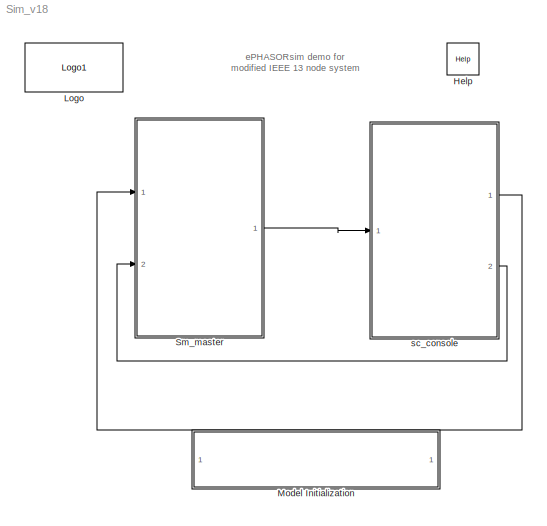
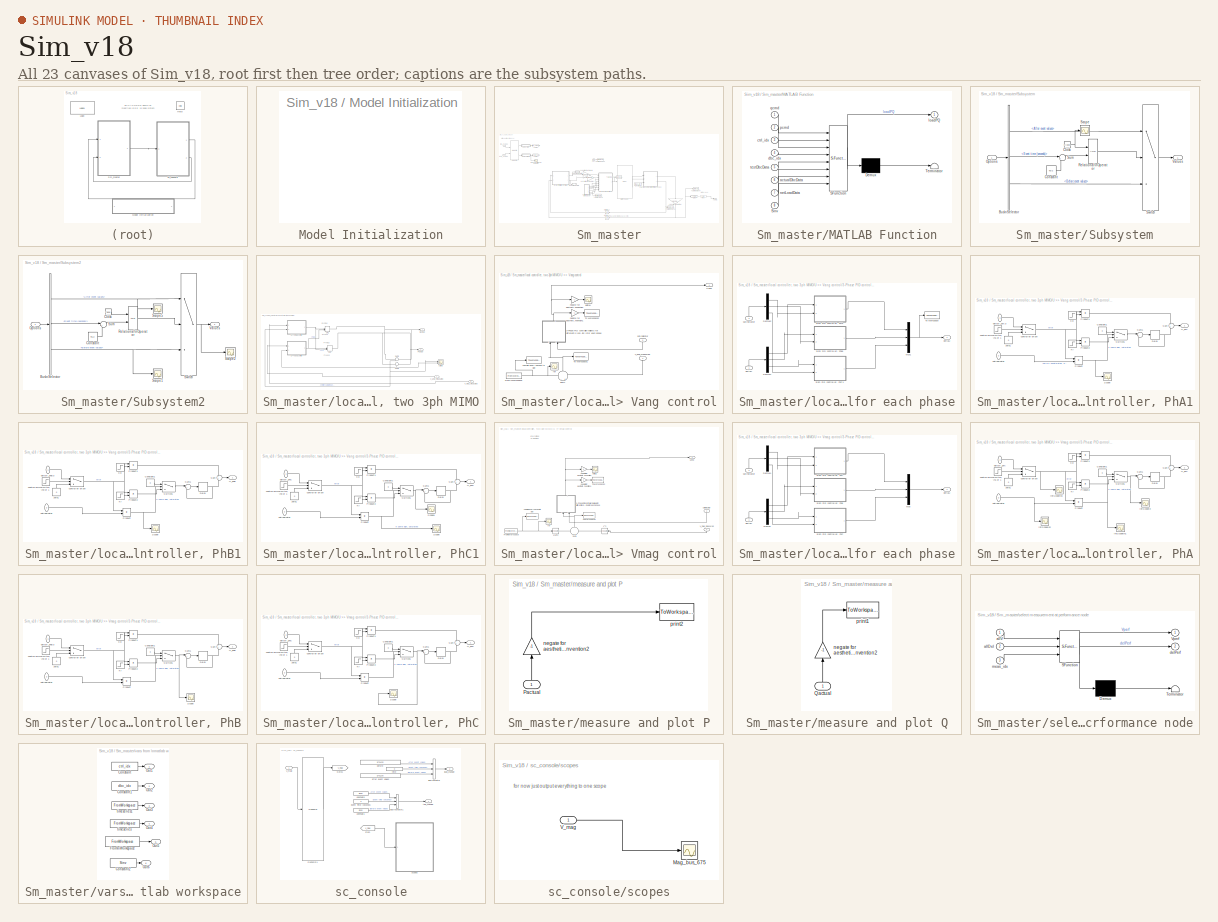
[diagram: thumbnail index - all 23 canvases of the model, root first then tree order]
MODEL Sim_v18
KIND model
CONFIG InitFcn = Ts=0.1;
CONFIG PostLoadFcn = Ts=0.1;
CONFIG PreLoadFcn = Ts=0.1;
CONFIG StartFcn = Ts=0.1;
BLOCK [Reference] Help  REF=opal_lib/Help
  Ports = []
  SID = 168
  SourceBlock = opal_lib/Help
  SourceType = OpDoc
  docfile = ../help/ePH_IEEE13.html
BLOCK [Reference] Logo  REF=opal_lib/Logo1
  Ports = []
  SID = 169
  SourceBlock = opal_lib/Logo1
  SourceType = Opal-RT logo
  vide = []
BLOCK [SubSystem] Model Initialization
  CopyFcn = set_param(gcb,'LinkStatus','none')
  Ports = []
  RequestExecContextInheritance = off
  SID = 107
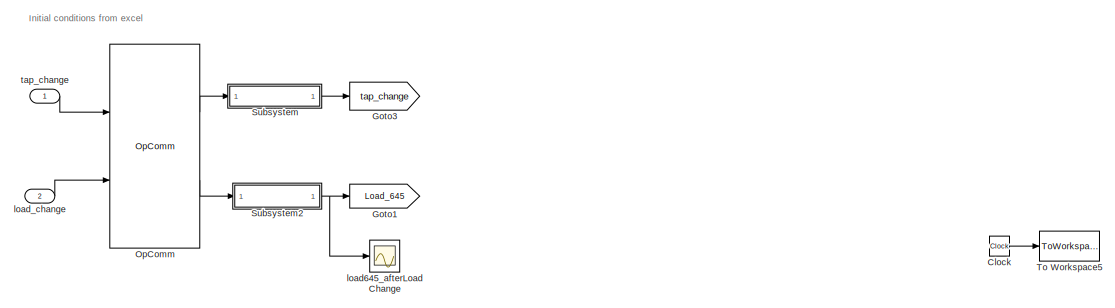
[diagram: Sm_master - part 1/3, top left region]
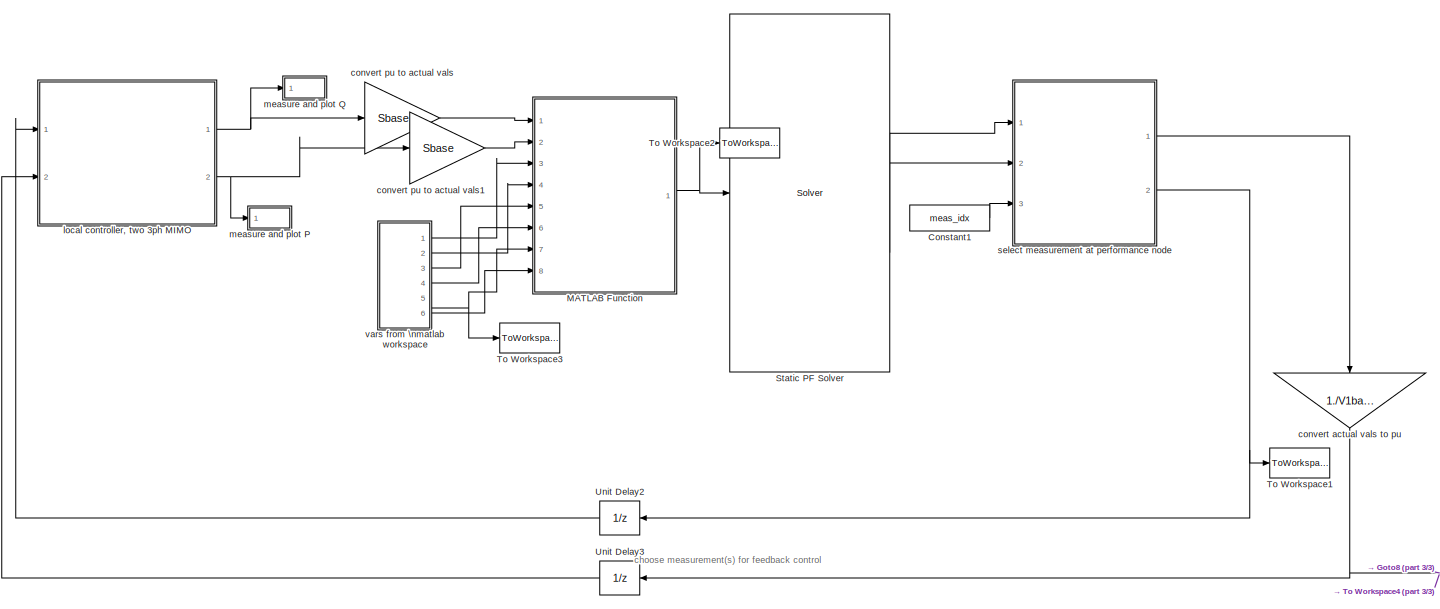
[diagram: Sm_master - part 2/3, central region]
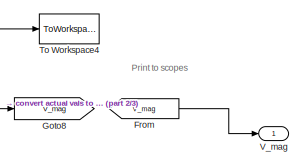
[diagram: Sm_master - part 3/3, bottom right region]
BLOCK [SubSystem] Sm_master
  Ports = [2, 1]
  RequestExecContextInheritance = off
  SID = 44
BLOCK [Clock] Sm_master/Clock
  SID = 2045
BLOCK [Constant] Sm_master/Constant1
  SID = 2028
  Value = meas_idx
BLOCK [From] Sm_master/From
  GotoTag = V_mag
  SID = 533
BLOCK [Goto] Sm_master/Goto1
  GotoTag = Load_645
  SID = 538
BLOCK [Goto] Sm_master/Goto3
  GotoTag = tap_change
  SID = 539
BLOCK [Goto] Sm_master/Goto8
  GotoTag = V_mag
  SID = 627
BLOCK [SubSystem] Sm_master/MATLAB Function
  ErrorFcn = Stateflow.Translate.translate
  PermitHierarchicalResolution = ExplicitOnly
  Ports = [8, 1]
  RequestExecContextInheritance = off
  SFBlockType = MATLAB Function
  SID = 1962
  TreatAsAtomicUnit = on
BLOCK [Demux] Sm_master/MATLAB Function/ Demux 
  Outputs = 1
  Ports = [1, 1]
  SID = 1962::17
BLOCK [S-Function] Sm_master/MATLAB Function/ SFunction 
  EnableBusSupport = on
  FunctionName = sf_sfun
  PortCounts = [8 2]
  Ports = [8, 2]
  SID = 1962::16
  Tag = Stateflow S-Function Sim_v18 2
BLOCK [Terminator] Sm_master/MATLAB Function/ Terminator 
  SID = 1962::18
BLOCK [Inport] Sm_master/MATLAB Function/Sinv
  IconDisplay = Port number
  Port = 8
  SID = 1962::33
BLOCK [Inport] Sm_master/MATLAB Function/actualDbcData
  IconDisplay = Port number
  Port = 6
  SID = 1962::32
BLOCK [Inport] Sm_master/MATLAB Function/ctrl_idx
  IconDisplay = Port number
  Port = 3
  SID = 1962::28
BLOCK [Inport] Sm_master/MATLAB Function/dbc_idx
  IconDisplay = Port number
  Port = 4
  SID = 1962::29
BLOCK [Outport] Sm_master/MATLAB Function/loadPQ
  IconDisplay = Port number
  SID = 1962::5
BLOCK [Inport] Sm_master/MATLAB Function/netLoadData
  IconDisplay = Port number
  Port = 7
  SID = 1962::31
BLOCK [Inport] Sm_master/MATLAB Function/pcmd
  IconDisplay = Port number
  Port = 2
  SID = 1962::1
BLOCK [Inport] Sm_master/MATLAB Function/qcmd
  IconDisplay = Port number
  SID = 1962::19
BLOCK [Inport] Sm_master/MATLAB Function/testDbcData
  IconDisplay = Port number
  Port = 5
  SID = 1962::30
BLOCK [Reference] Sm_master/OpComm  REF=rtlab/OpComm
  Interpolation = on
  Missed_Data = off
  Offset = off
  Ports = [2, 2]
  SID = 542
  Samples = off
  Sim_Time = off
  SourceBlock = rtlab/OpComm
  SourceType = RT-LAB OpComm
  Synchronization = on
  Threshold = 1.0
  dynSigOut = off
  from_console = 1
  groupe_acq = 1
  nbport = 2
  st = 0
  subsys_rate = 0
  warning_done = off
  writeOpCommFile = off
BLOCK [Reference] Sm_master/Static PF Solver  REF=rtlab_phasor/Solver
  Ports = [1, 2]
  SID = 1569
  SourceBlock = rtlab_phasor/Solver
  builtin = on
  capidir = 'CAPI'
  capiprefix = capicomp_
  cyme = 'ieee13.sxst'
  cyme_pf = ''
  cyme_unbalanced = on
  dt = Ts
  dyr = '4992b.dyr'
  epname = System
  exporty = off
  extension = Excel
  fmudir = 'FMU'
  fmuprefix = fmucomp_
  lazy_netlist = on
  logging = off
  np = 1
  optim_threads = off
  perflog_on = off
  pf_export = on
  pf_flat_start = off
  pf_max_it = 100
  pf_smart_start = off
  pf_tol_v = 0.00000001
  powerfactory = 'network.dgs'
  raw = '4992b.raw'
  script_activate_postinit = off
  script_postinit_name = ''
  sim_mode = Power-flow and dynamic simulation
  xls = 'impedMod_IEEE13.xls'
BLOCK [SubSystem] Sm_master/Subsystem
  Ports = [1, 1]
  RequestExecContextInheritance = off
  SID = 544
BLOCK [BusSelector] Sm_master/Subsystem/Bus\nSelector
  OutputSignals = After event values,Event time (seconds),Before event values
  Ports = [1, 3]
  SID = 546
BLOCK [Clock] Sm_master/Subsystem/Clock
  Decimation = 1
  SID = 547
BLOCK [Constant] Sm_master/Subsystem/Constant
  SID = 548
  Value = Ts/2
BLOCK [Inport] Sm_master/Subsystem/Options
  IconDisplay = Port number
  SID = 545
BLOCK [RelationalOperator] Sm_master/Subsystem/Relational\nOperator
  InputSameDT = off
  OutDataTypeStr = boolean
  Ports = [2, 1]
  SID = 549
BLOCK [Scope] Sm_master/Subsystem/Scope
  Floating = off
  NumInputPorts = 1
  Ports = [1]
  SID = 550
  SaveName = ScopeData1
BLOCK [Sum] Sm_master/Subsystem/Sum
  IconShape = round
  InputSameDT = off
  Inputs = |+-
  OutDataTypeStr = Inherit: Inherit via internal rule
  Ports = [2, 1]
  SID = 551
  SaturateOnIntegerOverflow = off
BLOCK [Switch] Sm_master/Subsystem/Switch
  InputSameDT = off
  SID = 552
  SaturateOnIntegerOverflow = off
  Threshold = 0.5
BLOCK [Outport] Sm_master/Subsystem/Values
  IconDisplay = Port number
  SID = 553
BLOCK [SubSystem] Sm_master/Subsystem2
  Ports = [1, 1]
  RequestExecContextInheritance = off
  SID = 554
BLOCK [BusSelector] Sm_master/Subsystem2/Bus\nSelector
  OutputSignals = After event values,Event time (seconds),Before event values
  Ports = [1, 3]
  SID = 556
BLOCK [Clock] Sm_master/Subsystem2/Clock
  Decimation = 1
  SID = 557
BLOCK [Constant] Sm_master/Subsystem2/Constant
  SID = 558
  Value = Ts/2
BLOCK [Inport] Sm_master/Subsystem2/Options
  IconDisplay = Port number
  SID = 555
BLOCK [RelationalOperator] Sm_master/Subsystem2/Relational\nOperator
  InputSameDT = off
  OutDataTypeStr = boolean
  Ports = [2, 1]
  SID = 559
BLOCK [Scope] Sm_master/Subsystem2/Scope1
  DataFormat = StructureWithTime
  Floating = off
  LimitDataPoints = off
  NumInputPorts = 1
  Ports = [1]
  SID = 560
  SampleTime = 0
  SaveName = ScopeData14
  ZoomMode = yonly
BLOCK [Scope] Sm_master/Subsystem2/Scope2
  DataFormat = StructureWithTime
  Floating = off
  LimitDataPoints = off
  NumInputPorts = 1
  Ports = [1]
  SID = 561
  SampleTime = 0
  SaveName = ScopeData15
  ZoomMode = yonly
BLOCK [Scope] Sm_master/Subsystem2/Scope5
  DataFormat = StructureWithTime
  Floating = off
  LimitDataPoints = off
  NumInputPorts = 1
  Ports = [1]
  SID = 562
  SampleTime = 0
  SaveName = ScopeData13
  ZoomMode = yonly
BLOCK [Sum] Sm_master/Subsystem2/Sum
  IconShape = round
  InputSameDT = off
  Inputs = |+-
  OutDataTypeStr = Inherit: Inherit via internal rule
  Ports = [2, 1]
  SID = 563
  SaturateOnIntegerOverflow = off
BLOCK [Switch] Sm_master/Subsystem2/Switch
  InputSameDT = off
  SID = 564
  SaturateOnIntegerOverflow = off
  Threshold = 0.5
BLOCK [Outport] Sm_master/Subsystem2/Values
  IconDisplay = Port number
  SID = 565
BLOCK [ToWorkspace] Sm_master/To Workspace1
  MaxDataPoints = inf
  Ports = [1]
  SID = 905
  SampleTime = -1
  Save2DSignal = 2-D array (concatenate along first dimension)
  VariableName = vang_new
BLOCK [ToWorkspace] Sm_master/To Workspace2
  MaxDataPoints = inf
  Ports = [1]
  SID = 2041
  SampleTime = -1
  Save2DSignal = 2-D array (concatenate along first dimension)
  VariableName = allPQ
BLOCK [ToWorkspace] Sm_master/To Workspace3
  MaxDataPoints = inf
  Ports = [1]
  SID = 2042
  SampleTime = -1
  Save2DSignal = 2-D array (concatenate along first dimension)
  VariableName = netloaddata
BLOCK [ToWorkspace] Sm_master/To Workspace4
  MaxDataPoints = inf
  Ports = [1]
  SID = 569
  SampleTime = -1
  Save2DSignal = 2-D array (concatenate along first dimension)
  VariableName = vmag_new
BLOCK [ToWorkspace] Sm_master/To Workspace5
  MaxDataPoints = inf
  Ports = [1]
  SID = 2046
  SampleTime = -1
  Save2DSignal = 2-D array (concatenate along first dimension)
  VariableName = t
BLOCK [UnitDelay] Sm_master/Unit Delay2
  InitialCondition = vang_init_actual
  InputProcessing = Elements as channels (sample based)
  SID = 1491
  SampleTime = Ts
BLOCK [UnitDelay] Sm_master/Unit Delay3
  InitialCondition = vmag_init_actual
  InputProcessing = Elements as channels (sample based)
  SID = 1492
  SampleTime = Ts
BLOCK [Outport] Sm_master/V_mag
  IconDisplay = Port number
  SID = 593
BLOCK [Gain] Sm_master/convert actual vals to pu
  Gain = 1./V1base
  OutDataTypeStr = Inherit: Inherit via internal rule
  ParamDataTypeStr = Inherit: Inherit via internal rule
  SID = 650
  SaturateOnIntegerOverflow = off
BLOCK [Gain] Sm_master/convert pu to actual vals
  Gain = Sbase
  OutDataTypeStr = Inherit: Inherit via internal rule
  ParamDataTypeStr = Inherit: Inherit via internal rule
  SID = 2043
  SaturateOnIntegerOverflow = off
BLOCK [Gain] Sm_master/convert pu to actual vals1
  Gain = Sbase
  OutDataTypeStr = Inherit: Inherit via internal rule
  ParamDataTypeStr = Inherit: Inherit via internal rule
  SID = 2044
  SaturateOnIntegerOverflow = off
BLOCK [Scope] Sm_master/load645_afterLoadChange
  Floating = off
  LegendLocations = 0.6649     0.75575     0.26032     0.11379
  NumInputPorts = 1
  Ports = [1]
  SID = 944
  SaveName = ScopeData17
  ShowLegends = on
  YMax = 1.0518
  YMin = 0.94469
BLOCK [Inport] Sm_master/load_change
  IconDisplay = Port number
  Port = 2
  SID = 528
BLOCK [SubSystem] Sm_master/local controller, two 3ph MIMO
  Ports = [2, 2]
  RequestExecContextInheritance = off
  SID = 1278
BLOCK [Outport] Sm_master/local controller, two 3ph MIMO/Pactual
  IconDisplay = Port number
  Port = 2
  SID = 1282
BLOCK [Outport] Sm_master/local controller, two 3ph MIMO/Qactual
  IconDisplay = Port number
  SID = 1281
BLOCK [Sum] Sm_master/local controller, two 3ph MIMO/Sum2
  IconShape = round
  InputSameDT = off
  Inputs = +-
  OutDataTypeStr = Inherit: Inherit via internal rule
  Ports = [2, 1]
  SID = 1386
  SaturateOnIntegerOverflow = off
BLOCK [Sum] Sm_master/local controller, two 3ph MIMO/Sum3
  IconShape = round
  InputSameDT = off
  Inputs = +-
  OutDataTypeStr = Inherit: Inherit via internal rule
  Ports = [2, 1]
  SID = 1387
  SaturateOnIntegerOverflow = off
BLOCK [SubSystem] Sm_master/local controller, two 3ph MIMO/U >> Vang control
  Ports = [2, 1]
  RequestExecContextInheritance = off
  SID = 837
BLOCK [SubSystem] Sm_master/local controller, two 3ph MIMO/U >> Vang control/3-Phase  PID controller\nallows for different\n controller gains \nfor each phase
  Ports = [2, 1]
  RequestExecContextInheritance = off
  SID = 839
BLOCK [Demux] Sm_master/local controller, two 3ph MIMO/U >> Vang control/3-Phase  PID controller\nallows for different\n controller gains \nfor each phase/Demux1
  DisplayOption = bar
  Outputs = 3
  Ports = [1, 3]
  SID = 1430
BLOCK [Demux] Sm_master/local controller, two 3ph MIMO/U >> Vang control/3-Phase  PID controller\nallows for different\n controller gains \nfor each phase/Demux2
  DisplayOption = bar
  Outputs = 3
  Ports = [1, 3]
  SID = 1431
BLOCK [Mux] Sm_master/local controller, two 3ph MIMO/U >> Vang control/3-Phase  PID controller\nallows for different\n controller gains \nfor each phase/Mux1
  DisplayOption = bar
  Inputs = 3
  Ports = [3, 1]
  SID = 1432
BLOCK [SubSystem] Sm_master/local controller, two 3ph MIMO/U >> Vang control/3-Phase  PID controller\nallows for different\n controller gains \nfor each phase/SISO PID controller, PhA1
  Ports = [2, 1]
  RequestExecContextInheritance = off
  SID = 1433
BLOCK [Constant] Sm_master/local controller, two 3ph MIMO/U >> Vang control/3-Phase  PID controller\nallows for different\n controller gains \nfor each phase/SISO PID controller, PhA1/Constant1
  SID = 1436
  Value = 0
BLOCK [Delay] Sm_master/local controller, two 3ph MIMO/U >> Vang control/3-Phase  PID controller\nallows for different\n controller gains \nfor each phase/SISO PID controller, PhA1/Delay
  DelayLength = 1
  InitialCondition = 0
  InputPortMap = u0
  Ports = [1, 1]
  SID = 1437
BLOCK [Step] Sm_master/local controller, two 3ph MIMO/U >> Vang control/3-Phase  PID controller\nallows for different\n controller gains \nfor each phase/SISO PID controller, PhA1/Ki
  After = Ki_vang(1)
  Before = Ki_vang(1)
  SID = 1438
  SampleTime = Ts
  Time = 57
BLOCK [Step] Sm_master/local controller, two 3ph MIMO/U >> Vang control/3-Phase  PID controller\nallows for different\n controller gains \nfor each phase/SISO PID controller, PhA1/Kp
  After = Kp_vang(1)
  Before = Kp_vang(1)
  SID = 1439
  SampleTime = Ts
  Time = 57
BLOCK [Product] Sm_master/local controller, two 3ph MIMO/U >> Vang control/3-Phase  PID controller\nallows for different\n controller gains \nfor each phase/SISO PID controller, PhA1/Product
  InputSameDT = off
  OutDataTypeStr = Inherit: Inherit via internal rule
  Ports = [2, 1]
  RndMeth = Floor
  SID = 1440
  SaturateOnIntegerOverflow = off
BLOCK [Product] Sm_master/local controller, two 3ph MIMO/U >> Vang control/3-Phase  PID controller\nallows for different\n controller gains \nfor each phase/SISO PID controller, PhA1/Product1
  InputSameDT = off
  OutDataTypeStr = Inherit: Inherit via internal rule
  Ports = [2, 1]
  RndMeth = Floor
  SID = 1441
  SaturateOnIntegerOverflow = off
BLOCK [Product] Sm_master/local controller, two 3ph MIMO/U >> Vang control/3-Phase  PID controller\nallows for different\n controller gains \nfor each phase/SISO PID controller, PhA1/Product2
  InputSameDT = off
  OutDataTypeStr = Inherit: Inherit via internal rule
  Ports = [2, 1]
  RndMeth = Floor
  SID = 1442
  SaturateOnIntegerOverflow = off
BLOCK [Scope] Sm_master/local controller, two 3ph MIMO/U >> Vang control/3-Phase  PID controller\nallows for different\n controller gains \nfor each phase/SISO PID controller, PhA1/Scope
  Floating = off
  NumInputPorts = 1
  Ports = [1]
  SID = 1443
  SaveName = ScopeData5
BLOCK [Sum] Sm_master/local controller, two 3ph MIMO/U >> Vang control/3-Phase  PID controller\nallows for different\n controller gains \nfor each phase/SISO PID controller, PhA1/Sum
  IconShape = round
  InputSameDT = off
  OutDataTypeStr = Inherit: Inherit via internal rule
  Ports = [2, 1]
  SID = 1444
  SaturateOnIntegerOverflow = off
BLOCK [Sum] Sm_master/local controller, two 3ph MIMO/U >> Vang control/3-Phase  PID controller\nallows for different\n controller gains \nfor each phase/SISO PID controller, PhA1/Sum1
  IconShape = round
  InputSameDT = off
  Inputs = |++
  OutDataTypeStr = Inherit: Inherit via internal rule
  Ports = [2, 1]
  SID = 1445
  SaturateOnIntegerOverflow = off
BLOCK [Switch] Sm_master/local controller, two 3ph MIMO/U >> Vang control/3-Phase  PID controller\nallows for different\n controller gains \nfor each phase/SISO PID controller, PhA1/Switch1
  Criteria = u2 > Threshold
  InputSameDT = off
  SID = 1446
  SaturateOnIntegerOverflow = off
BLOCK [Outport] Sm_master/local controller, two 3ph MIMO/U >> Vang control/3-Phase  PID controller\nallows for different\n controller gains \nfor each phase/SISO PID controller, PhA1/U_phA
  IconDisplay = Port number
  SID = 1450
BLOCK [Switch] Sm_master/local controller, two 3ph MIMO/U >> Vang control/3-Phase  PID controller\nallows for different\n controller gains \nfor each phase/SISO PID controller, PhA1/controller on sw
  Criteria = u2 > Threshold
  InputSameDT = off
  SID = 1447
  SaturateOnIntegerOverflow = off
BLOCK [Step] Sm_master/local controller, two 3ph MIMO/U >> Vang control/3-Phase  PID controller\nallows for different\n controller gains \nfor each phase/SISO PID controller, PhA1/controllerOnSwitch,\n1 or 1
  SID = 1448
  SampleTime = 0
  Time = Vmag_ctrlStart
BLOCK [Inport] Sm_master/local controller, two 3ph MIMO/U >> Vang control/3-Phase  PID controller\nallows for different\n controller gains \nfor each phase/SISO PID controller, PhA1/deltaY_phA3
  IconDisplay = Port number
  SID = 1434
BLOCK [Inport] Sm_master/local controller, two 3ph MIMO/U >> Vang control/3-Phase  PID controller\nallows for different\n controller gains \nfor each phase/SISO PID controller, PhA1/satIndicator
  IconDisplay = Port number
  Port = 2
  SID = 1435
BLOCK [Constant] Sm_master/local controller, two 3ph MIMO/U >> Vang control/3-Phase  PID controller\nallows for different\n controller gains \nfor each phase/SISO PID controller, PhA1/zero1
  SID = 1449
  Value = 0
BLOCK [SubSystem] Sm_master/local controller, two 3ph MIMO/U >> Vang control/3-Phase  PID controller\nallows for different\n controller gains \nfor each phase/SISO PID controller, PhB1
  Ports = [2, 1]
  RequestExecContextInheritance = off
  SID = 1451
BLOCK [Constant] Sm_master/local controller, two 3ph MIMO/U >> Vang control/3-Phase  PID controller\nallows for different\n controller gains \nfor each phase/SISO PID controller, PhB1/Constant1
  SID = 1454
  Value = 0
BLOCK [Delay] Sm_master/local controller, two 3ph MIMO/U >> Vang control/3-Phase  PID controller\nallows for different\n controller gains \nfor each phase/SISO PID controller, PhB1/Delay
  DelayLength = 1
  InitialCondition = 0
  InputPortMap = u0
  Ports = [1, 1]
  SID = 1455
BLOCK [Step] Sm_master/local controller, two 3ph MIMO/U >> Vang control/3-Phase  PID controller\nallows for different\n controller gains \nfor each phase/SISO PID controller, PhB1/Ki
  After = Ki_vang(2)
  Before = Ki_vang(2)
  SID = 1456
  SampleTime = Ts
  Time = 57
BLOCK [Step] Sm_master/local controller, two 3ph MIMO/U >> Vang control/3-Phase  PID controller\nallows for different\n controller gains \nfor each phase/SISO PID controller, PhB1/Kp
  After = Kp_vang(2)
  Before = Kp_vang(2)
  SID = 1457
  SampleTime = Ts
  Time = 57
BLOCK [Product] Sm_master/local controller, two 3ph MIMO/U >> Vang control/3-Phase  PID controller\nallows for different\n controller gains \nfor each phase/SISO PID controller, PhB1/Product
  InputSameDT = off
  OutDataTypeStr = Inherit: Inherit via internal rule
  Ports = [2, 1]
  RndMeth = Floor
  SID = 1458
  SaturateOnIntegerOverflow = off
BLOCK [Product] Sm_master/local controller, two 3ph MIMO/U >> Vang control/3-Phase  PID controller\nallows for different\n controller gains \nfor each phase/SISO PID controller, PhB1/Product1
  InputSameDT = off
  OutDataTypeStr = Inherit: Inherit via internal rule
  Ports = [2, 1]
  RndMeth = Floor
  SID = 1459
  SaturateOnIntegerOverflow = off
BLOCK [Product] Sm_master/local controller, two 3ph MIMO/U >> Vang control/3-Phase  PID controller\nallows for different\n controller gains \nfor each phase/SISO PID controller, PhB1/Product2
  InputSameDT = off
  OutDataTypeStr = Inherit: Inherit via internal rule
  Ports = [2, 1]
  RndMeth = Floor
  SID = 1460
  SaturateOnIntegerOverflow = off
BLOCK [Scope] Sm_master/local controller, two 3ph MIMO/U >> Vang control/3-Phase  PID controller\nallows for different\n controller gains \nfor each phase/SISO PID controller, PhB1/Scope
  Floating = off
  NumInputPorts = 1
  Ports = [1]
  SID = 1461
  SaveName = ScopeData3
  YMax = 0.1
  YMin = -0.1
BLOCK [Sum] Sm_master/local controller, two 3ph MIMO/U >> Vang control/3-Phase  PID controller\nallows for different\n controller gains \nfor each phase/SISO PID controller, PhB1/Sum
  IconShape = round
  InputSameDT = off
  OutDataTypeStr = Inherit: Inherit via internal rule
  Ports = [2, 1]
  SID = 1462
  SaturateOnIntegerOverflow = off
BLOCK [Sum] Sm_master/local controller, two 3ph MIMO/U >> Vang control/3-Phase  PID controller\nallows for different\n controller gains \nfor each phase/SISO PID controller, PhB1/Sum1
  IconShape = round
  InputSameDT = off
  Inputs = |++
  OutDataTypeStr = Inherit: Inherit via internal rule
  Ports = [2, 1]
  SID = 1463
  SaturateOnIntegerOverflow = off
BLOCK [Switch] Sm_master/local controller, two 3ph MIMO/U >> Vang control/3-Phase  PID controller\nallows for different\n controller gains \nfor each phase/SISO PID controller, PhB1/Switch1
  Criteria = u2 > Threshold
  InputSameDT = off
  SID = 1464
  SaturateOnIntegerOverflow = off
BLOCK [Outport] Sm_master/local controller, two 3ph MIMO/U >> Vang control/3-Phase  PID controller\nallows for different\n controller gains \nfor each phase/SISO PID controller, PhB1/U_phB
  IconDisplay = Port number
  SID = 1468
BLOCK [Switch] Sm_master/local controller, two 3ph MIMO/U >> Vang control/3-Phase  PID controller\nallows for different\n controller gains \nfor each phase/SISO PID controller, PhB1/controller on sw
  Criteria = u2 > Threshold
  InputSameDT = off
  SID = 1465
  SaturateOnIntegerOverflow = off
BLOCK [Step] Sm_master/local controller, two 3ph MIMO/U >> Vang control/3-Phase  PID controller\nallows for different\n controller gains \nfor each phase/SISO PID controller, PhB1/controllerOnSwitch,\n0 or 1
  SID = 1466
  SampleTime = 0
  Time = Vmag_ctrlStart
BLOCK [Inport] Sm_master/local controller, two 3ph MIMO/U >> Vang control/3-Phase  PID controller\nallows for different\n controller gains \nfor each phase/SISO PID controller, PhB1/deltaY_phB3
  IconDisplay = Port number
  SID = 1452
BLOCK [Inport] Sm_master/local controller, two 3ph MIMO/U >> Vang control/3-Phase  PID controller\nallows for different\n controller gains \nfor each phase/SISO PID controller, PhB1/satIndicator
  IconDisplay = Port number
  Port = 2
  SID = 1453
BLOCK [Constant] Sm_master/local controller, two 3ph MIMO/U >> Vang control/3-Phase  PID controller\nallows for different\n controller gains \nfor each phase/SISO PID controller, PhB1/zero1
  SID = 1467
  Value = 0
BLOCK [SubSystem] Sm_master/local controller, two 3ph MIMO/U >> Vang control/3-Phase  PID controller\nallows for different\n controller gains \nfor each phase/SISO PID controller, PhC1
  Ports = [2, 1]
  RequestExecContextInheritance = off
  SID = 1469
BLOCK [Constant] Sm_master/local controller, two 3ph MIMO/U >> Vang control/3-Phase  PID controller\nallows for different\n controller gains \nfor each phase/SISO PID controller, PhC1/Constant1
  SID = 1472
  Value = 0
BLOCK [Delay] Sm_master/local controller, two 3ph MIMO/U >> Vang control/3-Phase  PID controller\nallows for different\n controller gains \nfor each phase/SISO PID controller, PhC1/Delay
  DelayLength = 1
  InitialCondition = 0
  InputPortMap = u0
  Ports = [1, 1]
  SID = 1473
BLOCK [Step] Sm_master/local controller, two 3ph MIMO/U >> Vang control/3-Phase  PID controller\nallows for different\n controller gains \nfor each phase/SISO PID controller, PhC1/Ki
  After = Ki_vang(3)
  Before = Ki_vang(3)
  SID = 1474
  SampleTime = Ts
  Time = 57
BLOCK [Step] Sm_master/local controller, two 3ph MIMO/U >> Vang control/3-Phase  PID controller\nallows for different\n controller gains \nfor each phase/SISO PID controller, PhC1/Kp
  After = Kp_vang(3)
  Before = Kp_vang(3)
  SID = 1475
  SampleTime = Ts
  Time = 57
BLOCK [Product] Sm_master/local controller, two 3ph MIMO/U >> Vang control/3-Phase  PID controller\nallows for different\n controller gains \nfor each phase/SISO PID controller, PhC1/Product
  InputSameDT = off
  OutDataTypeStr = Inherit: Inherit via internal rule
  Ports = [2, 1]
  RndMeth = Floor
  SID = 1476
  SaturateOnIntegerOverflow = off
BLOCK [Product] Sm_master/local controller, two 3ph MIMO/U >> Vang control/3-Phase  PID controller\nallows for different\n controller gains \nfor each phase/SISO PID controller, PhC1/Product1
  InputSameDT = off
  OutDataTypeStr = Inherit: Inherit via internal rule
  Ports = [2, 1]
  RndMeth = Floor
  SID = 1477
  SaturateOnIntegerOverflow = off
BLOCK [Product] Sm_master/local controller, two 3ph MIMO/U >> Vang control/3-Phase  PID controller\nallows for different\n controller gains \nfor each phase/SISO PID controller, PhC1/Product2
  InputSameDT = off
  OutDataTypeStr = Inherit: Inherit via internal rule
  Ports = [2, 1]
  RndMeth = Floor
  SID = 1478
  SaturateOnIntegerOverflow = off
BLOCK [Scope] Sm_master/local controller, two 3ph MIMO/U >> Vang control/3-Phase  PID controller\nallows for different\n controller gains \nfor each phase/SISO PID controller, PhC1/Scope
  Floating = off
  NumInputPorts = 1
  Ports = [1]
  SID = 1479
  SaveName = ScopeData10
BLOCK [Scope] Sm_master/local controller, two 3ph MIMO/U >> Vang control/3-Phase  PID controller\nallows for different\n controller gains \nfor each phase/SISO PID controller, PhC1/Scope1
  Floating = off
  NumInputPorts = 1
  Ports = [1]
  SID = 1495
  SaveName = ScopeData22
  YMax = 0.1
  YMin = -0.1
BLOCK [Sum] Sm_master/local controller, two 3ph MIMO/U >> Vang control/3-Phase  PID controller\nallows for different\n controller gains \nfor each phase/SISO PID controller, PhC1/Sum
  IconShape = round
  InputSameDT = off
  OutDataTypeStr = Inherit: Inherit via internal rule
  Ports = [2, 1]
  SID = 1480
  SaturateOnIntegerOverflow = off
BLOCK [Sum] Sm_master/local controller, two 3ph MIMO/U >> Vang control/3-Phase  PID controller\nallows for different\n controller gains \nfor each phase/SISO PID controller, PhC1/Sum1
  IconShape = round
  InputSameDT = off
  Inputs = |++
  OutDataTypeStr = Inherit: Inherit via internal rule
  Ports = [2, 1]
  SID = 1481
  SaturateOnIntegerOverflow = off
BLOCK [Switch] Sm_master/local controller, two 3ph MIMO/U >> Vang control/3-Phase  PID controller\nallows for different\n controller gains \nfor each phase/SISO PID controller, PhC1/Switch1
  Criteria = u2 > Threshold
  InputSameDT = off
  SID = 1482
  SaturateOnIntegerOverflow = off
BLOCK [Outport] Sm_master/local controller, two 3ph MIMO/U >> Vang control/3-Phase  PID controller\nallows for different\n controller gains \nfor each phase/SISO PID controller, PhC1/U_phC
  IconDisplay = Port number
  SID = 1486
BLOCK [Switch] Sm_master/local controller, two 3ph MIMO/U >> Vang control/3-Phase  PID controller\nallows for different\n controller gains \nfor each phase/SISO PID controller, PhC1/controller on sw
  Criteria = u2 > Threshold
  InputSameDT = off
  SID = 1483
  SaturateOnIntegerOverflow = off
BLOCK [Step] Sm_master/local controller, two 3ph MIMO/U >> Vang control/3-Phase  PID controller\nallows for different\n controller gains \nfor each phase/SISO PID controller, PhC1/controllerOnSwitch,\n0 or 1
  SID = 1484
  SampleTime = 0
  Time = Vmag_ctrlStart
BLOCK [Inport] Sm_master/local controller, two 3ph MIMO/U >> Vang control/3-Phase  PID controller\nallows for different\n controller gains \nfor each phase/SISO PID controller, PhC1/deltaY_phC
  IconDisplay = Port number
  SID = 1470
BLOCK [Inport] Sm_master/local controller, two 3ph MIMO/U >> Vang control/3-Phase  PID controller\nallows for different\n controller gains \nfor each phase/SISO PID controller, PhC1/satIndicator
  IconDisplay = Port number
  Port = 2
  SID = 1471
BLOCK [Constant] Sm_master/local controller, two 3ph MIMO/U >> Vang control/3-Phase  PID controller\nallows for different\n controller gains \nfor each phase/SISO PID controller, PhC1/zero1
  SID = 1485
  Value = 0
BLOCK [ToWorkspace] Sm_master/local controller, two 3ph MIMO/U >> Vang control/3-Phase  PID controller\nallows for different\n controller gains \nfor each phase/To Workspace
  FixptAsFi = on
  MaxDataPoints = inf
  Ports = [1]
  SID = 1515
  SampleTime = -1
  Save2DSignal = 3-D array (concatenate along third dimension)
  SaveFormat = Timeseries
  VariableName = deltaU_mm
BLOCK [Outport] Sm_master/local controller, two 3ph MIMO/U >> Vang control/3-Phase  PID controller\nallows for different\n controller gains \nfor each phase/deltaU
  IconDisplay = Port number
  SID = 1487
BLOCK [Inport] Sm_master/local controller, two 3ph MIMO/U >> Vang control/3-Phase  PID controller\nallows for different\n controller gains \nfor each phase/deltaV
  IconDisplay = Port number
  SID = 1428
BLOCK [Inport] Sm_master/local controller, two 3ph MIMO/U >> Vang control/3-Phase  PID controller\nallows for different\n controller gains \nfor each phase/satIndicator
  IconDisplay = Port number
  Port = 2
  SID = 1429
BLOCK [FromWorkspace] Sm_master/local controller, two 3ph MIMO/U >> Vang control/From\nWorkspace
  OutDataTypeStr = double
  SID = 1130
  SampleTime = 0
  VariableName = vang_ref
  ZeroCross = on
BLOCK [Sum] Sm_master/local controller, two 3ph MIMO/U >> Vang control/Sum1
  IconShape = round
  InputSameDT = off
  Inputs = -|+
  OutDataTypeStr = Inherit: Inherit via internal rule
  Ports = [2, 1]
  SID = 874
  SaturateOnIntegerOverflow = off
BLOCK [ToWorkspace] Sm_master/local controller, two 3ph MIMO/U >> Vang control/To Workspace1
  MaxDataPoints = inf
  Ports = [1]
  SID = 877
  SampleTime = -1
  VariableName = delta_vang
BLOCK [ToWorkspace] Sm_master/local controller, two 3ph MIMO/U >> Vang control/To Workspace2
  MaxDataPoints = inf
  Ports = [1]
  SID = 878
  SampleTime = -1
  VariableName = delta_u_vang
BLOCK [Outport] Sm_master/local controller, two 3ph MIMO/U >> Vang control/Unew
  IconDisplay = Port number
  SID = 900
BLOCK [Inport] Sm_master/local controller, two 3ph MIMO/U >> Vang control/V_ang_measured
  IconDisplay = Port number
  SID = 838
BLOCK [Scope] Sm_master/local controller, two 3ph MIMO/U >> Vang control/deltaU
  Floating = off
  NumInputPorts = 1
  Ports = [1]
  SID = 880
  ShowLegends = on
  YMax = 0.9375
  YMin = -1.4375
BLOCK [Gain] Sm_master/local controller, two 3ph MIMO/U >> Vang control/negate for aesthetic\n sign convention
  Gain = -1
  OutDataTypeStr = Inherit: Inherit via internal rule
  ParamDataTypeStr = Inherit: Inherit via internal rule
  SID = 892
  SaturateOnIntegerOverflow = off
BLOCK [Gain] Sm_master/local controller, two 3ph MIMO/U >> Vang control/negate for aesthetic\n sign convention1
  Gain = -1
  OutDataTypeStr = Inherit: Inherit via internal rule
  ParamDataTypeStr = Inherit: Inherit via internal rule
  SID = 893
  SaturateOnIntegerOverflow = off
BLOCK [Scope] Sm_master/local controller, two 3ph MIMO/U >> Vang control/ref
  Floating = off
  LegendLocations = 0.53944     0.69805     0.29835     0.16755
  NumInputPorts = 1
  Ports = [1]
  SID = 1129
  SaveName = ScopeData24
  ShowLegends = on
  YMax = 0.9375
  YMin = -1.4375
BLOCK [ToWorkspace] Sm_master/local controller, two 3ph MIMO/U >> Vang control/sample every second to plot
  MaxDataPoints = inf
  Ports = [1]
  SID = 1204
  SampleTime = -1
  VariableName = vang_ref_sig
BLOCK [Inport] Sm_master/local controller, two 3ph MIMO/U >> Vang control/satIndicator
  IconDisplay = Port number
  Port = 2
  SID = 1488
BLOCK [SubSystem] Sm_master/local controller, two 3ph MIMO/U >> Vmag control
  Ports = [2, 1]
  RequestExecContextInheritance = off
  SID = 834
BLOCK [SubSystem] Sm_master/local controller, two 3ph MIMO/U >> Vmag control/3-Phase  PID controller\nallows for different\n controller gains \nfor each phase
  Ports = [2, 1]
  RequestExecContextInheritance = off
  SID = 694
BLOCK [Demux] Sm_master/local controller, two 3ph MIMO/U >> Vmag control/3-Phase  PID controller\nallows for different\n controller gains \nfor each phase/Demux
  DisplayOption = bar
  Outputs = 3
  Ports = [1, 3]
  SID = 688
BLOCK [Demux] Sm_master/local controller, two 3ph MIMO/U >> Vmag control/3-Phase  PID controller\nallows for different\n controller gains \nfor each phase/Demux1
  DisplayOption = bar
  Outputs = 3
  Ports = [1, 3]
  SID = 1408
BLOCK [Mux] Sm_master/local controller, two 3ph MIMO/U >> Vmag control/3-Phase  PID controller\nallows for different\n controller gains \nfor each phase/Mux
  DisplayOption = bar
  Inputs = 3
  Ports = [3, 1]
  SID = 678
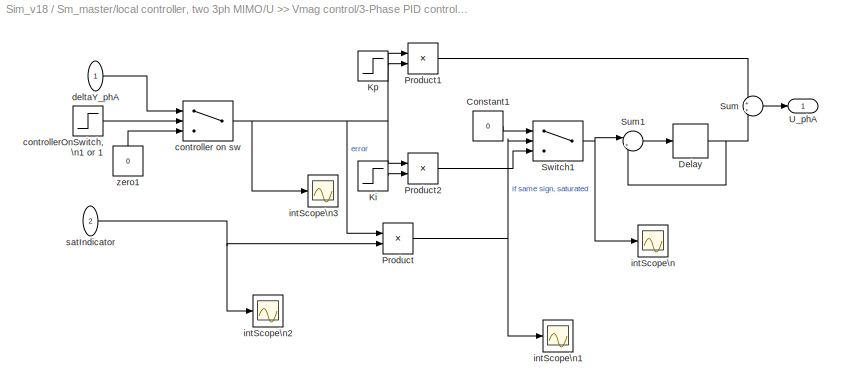
BLOCK [SubSystem] Sm_master/local controller, two 3ph MIMO/U >> Vmag control/3-Phase  PID controller\nallows for different\n controller gains \nfor each phase/SISO PID controller, PhA
  Ports = [2, 1]
  RequestExecContextInheritance = off
  SID = 657
BLOCK [Constant] Sm_master/local controller, two 3ph MIMO/U >> Vmag control/3-Phase  PID controller\nallows for different\n controller gains \nfor each phase/SISO PID controller, PhA/Constant1
  SID = 1365
  Value = 0
BLOCK [Delay] Sm_master/local controller, two 3ph MIMO/U >> Vmag control/3-Phase  PID controller\nallows for different\n controller gains \nfor each phase/SISO PID controller, PhA/Delay
  DelayLength = 1
  InitialCondition = 0
  InputPortMap = u0
  Ports = [1, 1]
  SID = 1366
BLOCK [Step] Sm_master/local controller, two 3ph MIMO/U >> Vmag control/3-Phase  PID controller\nallows for different\n controller gains \nfor each phase/SISO PID controller, PhA/Ki
  After = Ki_vmag(1)
  Before = Ki_vmag(1)
  SID = 1375
  SampleTime = Ts
  Time = 57
BLOCK [Step] Sm_master/local controller, two 3ph MIMO/U >> Vmag control/3-Phase  PID controller\nallows for different\n controller gains \nfor each phase/SISO PID controller, PhA/Kp
  After = Kp_vmag(1)
  Before = Kp_vmag(1)
  SID = 1376
  SampleTime = Ts
  Time = 57
BLOCK [Product] Sm_master/local controller, two 3ph MIMO/U >> Vmag control/3-Phase  PID controller\nallows for different\n controller gains \nfor each phase/SISO PID controller, PhA/Product
  InputSameDT = off
  OutDataTypeStr = Inherit: Inherit via internal rule
  Ports = [2, 1]
  RndMeth = Floor
  SID = 1367
  SaturateOnIntegerOverflow = off
BLOCK [Product] Sm_master/local controller, two 3ph MIMO/U >> Vmag control/3-Phase  PID controller\nallows for different\n controller gains \nfor each phase/SISO PID controller, PhA/Product1
  InputSameDT = off
  OutDataTypeStr = Inherit: Inherit via internal rule
  Ports = [2, 1]
  RndMeth = Floor
  SID = 1373
  SaturateOnIntegerOverflow = off
BLOCK [Product] Sm_master/local controller, two 3ph MIMO/U >> Vmag control/3-Phase  PID controller\nallows for different\n controller gains \nfor each phase/SISO PID controller, PhA/Product2
  InputSameDT = off
  OutDataTypeStr = Inherit: Inherit via internal rule
  Ports = [2, 1]
  RndMeth = Floor
  SID = 1374
  SaturateOnIntegerOverflow = off
BLOCK [Sum] Sm_master/local controller, two 3ph MIMO/U >> Vmag control/3-Phase  PID controller\nallows for different\n controller gains \nfor each phase/SISO PID controller, PhA/Sum
  IconShape = round
  InputSameDT = off
  OutDataTypeStr = Inherit: Inherit via internal rule
  Ports = [2, 1]
  SID = 1369
  SaturateOnIntegerOverflow = off
BLOCK [Sum] Sm_master/local controller, two 3ph MIMO/U >> Vmag control/3-Phase  PID controller\nallows for different\n controller gains \nfor each phase/SISO PID controller, PhA/Sum1
  IconShape = round
  InputSameDT = off
  Inputs = |++
  OutDataTypeStr = Inherit: Inherit via internal rule
  Ports = [2, 1]
  SID = 1370
  SaturateOnIntegerOverflow = off
BLOCK [Switch] Sm_master/local controller, two 3ph MIMO/U >> Vmag control/3-Phase  PID controller\nallows for different\n controller gains \nfor each phase/SISO PID controller, PhA/Switch1
  Criteria = u2 > Threshold
  InputSameDT = off
  SID = 1371
  SaturateOnIntegerOverflow = off
BLOCK [Outport] Sm_master/local controller, two 3ph MIMO/U >> Vmag control/3-Phase  PID controller\nallows for different\n controller gains \nfor each phase/SISO PID controller, PhA/U_phA
  IconDisplay = Port number
  SID = 659
BLOCK [Switch] Sm_master/local controller, two 3ph MIMO/U >> Vmag control/3-Phase  PID controller\nallows for different\n controller gains \nfor each phase/SISO PID controller, PhA/controller on sw
  Criteria = u2 > Threshold
  InputSameDT = off
  SID = 1379
  SaturateOnIntegerOverflow = off
BLOCK [Step] Sm_master/local controller, two 3ph MIMO/U >> Vmag control/3-Phase  PID controller\nallows for different\n controller gains \nfor each phase/SISO PID controller, PhA/controllerOnSwitch,\n1 or 1
  SID = 1381
  SampleTime = 0
  Time = Vmag_ctrlStart
BLOCK [Inport] Sm_master/local controller, two 3ph MIMO/U >> Vmag control/3-Phase  PID controller\nallows for different\n controller gains \nfor each phase/SISO PID controller, PhA/deltaY_phA
  IconDisplay = Port number
  SID = 1384
BLOCK [Scope] Sm_master/local controller, two 3ph MIMO/U >> Vmag control/3-Phase  PID controller\nallows for different\n controller gains \nfor each phase/SISO PID controller, PhA/intScope\n
  Floating = off
  NumInputPorts = 1
  Ports = [1]
  SID = 1494
  SaveName = ScopeData21
  YMax = 0.1
  YMin = -0.25
BLOCK [Scope] Sm_master/local controller, two 3ph MIMO/U >> Vmag control/3-Phase  PID controller\nallows for different\n controller gains \nfor each phase/SISO PID controller, PhA/intScope\n1
  Floating = off
  NumInputPorts = 1
  Ports = [1]
  SID = 1496
  SaveName = ScopeData25
  YMax = 0.1
  YMin = -0.1
BLOCK [Scope] Sm_master/local controller, two 3ph MIMO/U >> Vmag control/3-Phase  PID controller\nallows for different\n controller gains \nfor each phase/SISO PID controller, PhA/intScope\n2
  Floating = off
  NumInputPorts = 1
  Ports = [1]
  SID = 1497
  SaveName = ScopeData26
  YMax = 0.1
  YMin = -0.1
BLOCK [Scope] Sm_master/local controller, two 3ph MIMO/U >> Vmag control/3-Phase  PID controller\nallows for different\n controller gains \nfor each phase/SISO PID controller, PhA/intScope\n3
  Floating = off
  NumInputPorts = 1
  Ports = [1]
  SID = 1498
  SaveName = ScopeData27
  YMax = 0.1
  YMin = -0.1
BLOCK [Inport] Sm_master/local controller, two 3ph MIMO/U >> Vmag control/3-Phase  PID controller\nallows for different\n controller gains \nfor each phase/SISO PID controller, PhA/satIndicator
  IconDisplay = Port number
  Port = 2
  SID = 1389
BLOCK [Constant] Sm_master/local controller, two 3ph MIMO/U >> Vmag control/3-Phase  PID controller\nallows for different\n controller gains \nfor each phase/SISO PID controller, PhA/zero1
  SID = 1382
  Value = 0
BLOCK [SubSystem] Sm_master/local controller, two 3ph MIMO/U >> Vmag control/3-Phase  PID controller\nallows for different\n controller gains \nfor each phase/SISO PID controller, PhB
  Ports = [2, 1]
  RequestExecContextInheritance = off
  SID = 662
BLOCK [Constant] Sm_master/local controller, two 3ph MIMO/U >> Vmag control/3-Phase  PID controller\nallows for different\n controller gains \nfor each phase/SISO PID controller, PhB/Constant1
  SID = 1392
  Value = 0
BLOCK [Delay] Sm_master/local controller, two 3ph MIMO/U >> Vmag control/3-Phase  PID controller\nallows for different\n controller gains \nfor each phase/SISO PID controller, PhB/Delay
  DelayLength = 1
  InitialCondition = 0
  InputPortMap = u0
  Ports = [1, 1]
  SID = 1393
BLOCK [Step] Sm_master/local controller, two 3ph MIMO/U >> Vmag control/3-Phase  PID controller\nallows for different\n controller gains \nfor each phase/SISO PID controller, PhB/Ki
  After = Ki_vmag(2)
  Before = Ki_vmag(2)
  SID = 1394
  SampleTime = Ts
  Time = 57
BLOCK [Step] Sm_master/local controller, two 3ph MIMO/U >> Vmag control/3-Phase  PID controller\nallows for different\n controller gains \nfor each phase/SISO PID controller, PhB/Kp
  After = Kp_vmag(2)
  Before = Kp_vmag(2)
  SID = 1395
  SampleTime = Ts
  Time = 57
BLOCK [Product] Sm_master/local controller, two 3ph MIMO/U >> Vmag control/3-Phase  PID controller\nallows for different\n controller gains \nfor each phase/SISO PID controller, PhB/Product
  InputSameDT = off
  OutDataTypeStr = Inherit: Inherit via internal rule
  Ports = [2, 1]
  RndMeth = Floor
  SID = 1396
  SaturateOnIntegerOverflow = off
BLOCK [Product] Sm_master/local controller, two 3ph MIMO/U >> Vmag control/3-Phase  PID controller\nallows for different\n controller gains \nfor each phase/SISO PID controller, PhB/Product1
  InputSameDT = off
  OutDataTypeStr = Inherit: Inherit via internal rule
  Ports = [2, 1]
  RndMeth = Floor
  SID = 1397
  SaturateOnIntegerOverflow = off
BLOCK [Product] Sm_master/local controller, two 3ph MIMO/U >> Vmag control/3-Phase  PID controller\nallows for different\n controller gains \nfor each phase/SISO PID controller, PhB/Product2
  InputSameDT = off
  OutDataTypeStr = Inherit: Inherit via internal rule
  Ports = [2, 1]
  RndMeth = Floor
  SID = 1398
  SaturateOnIntegerOverflow = off
BLOCK [Scope] Sm_master/local controller, two 3ph MIMO/U >> Vmag control/3-Phase  PID controller\nallows for different\n controller gains \nfor each phase/SISO PID controller, PhB/Scope
  Floating = off
  NumInputPorts = 1
  Ports = [1]
  SID = 1399
  SaveName = ScopeData3
  YMax = 0.1
  YMin = -0.1
BLOCK [Sum] Sm_master/local controller, two 3ph MIMO/U >> Vmag control/3-Phase  PID controller\nallows for different\n controller gains \nfor each phase/SISO PID controller, PhB/Sum
  IconShape = round
  InputSameDT = off
  OutDataTypeStr = Inherit: Inherit via internal rule
  Ports = [2, 1]
  SID = 1400
  SaturateOnIntegerOverflow = off
BLOCK [Sum] Sm_master/local controller, two 3ph MIMO/U >> Vmag control/3-Phase  PID controller\nallows for different\n controller gains \nfor each phase/SISO PID controller, PhB/Sum1
  IconShape = round
  InputSameDT = off
  Inputs = |++
  OutDataTypeStr = Inherit: Inherit via internal rule
  Ports = [2, 1]
  SID = 1401
  SaturateOnIntegerOverflow = off
BLOCK [Switch] Sm_master/local controller, two 3ph MIMO/U >> Vmag control/3-Phase  PID controller\nallows for different\n controller gains \nfor each phase/SISO PID controller, PhB/Switch1
  Criteria = u2 > Threshold
  InputSameDT = off
  SID = 1402
  SaturateOnIntegerOverflow = off
BLOCK [Outport] Sm_master/local controller, two 3ph MIMO/U >> Vmag control/3-Phase  PID controller\nallows for different\n controller gains \nfor each phase/SISO PID controller, PhB/U_phB
  IconDisplay = Port number
  SID = 1406
BLOCK [Switch] Sm_master/local controller, two 3ph MIMO/U >> Vmag control/3-Phase  PID controller\nallows for different\n controller gains \nfor each phase/SISO PID controller, PhB/controller on sw
  Criteria = u2 > Threshold
  InputSameDT = off
  SID = 1403
  SaturateOnIntegerOverflow = off
BLOCK [Step] Sm_master/local controller, two 3ph MIMO/U >> Vmag control/3-Phase  PID controller\nallows for different\n controller gains \nfor each phase/SISO PID controller, PhB/controllerOnSwitch,\n0 or 1
  SID = 1404
  SampleTime = 0
  Time = Vmag_ctrlStart
BLOCK [Inport] Sm_master/local controller, two 3ph MIMO/U >> Vmag control/3-Phase  PID controller\nallows for different\n controller gains \nfor each phase/SISO PID controller, PhB/deltaY_phB3
  IconDisplay = Port number
  SID = 1390
BLOCK [Inport] Sm_master/local controller, two 3ph MIMO/U >> Vmag control/3-Phase  PID controller\nallows for different\n controller gains \nfor each phase/SISO PID controller, PhB/satIndicator
  IconDisplay = Port number
  Port = 2
  SID = 1391
BLOCK [Constant] Sm_master/local controller, two 3ph MIMO/U >> Vmag control/3-Phase  PID controller\nallows for different\n controller gains \nfor each phase/SISO PID controller, PhB/zero1
  SID = 1405
  Value = 0
BLOCK [SubSystem] Sm_master/local controller, two 3ph MIMO/U >> Vmag control/3-Phase  PID controller\nallows for different\n controller gains \nfor each phase/SISO PID controller, PhC
  Ports = [2, 1]
  RequestExecContextInheritance = off
  SID = 670
BLOCK [Constant] Sm_master/local controller, two 3ph MIMO/U >> Vmag control/3-Phase  PID controller\nallows for different\n controller gains \nfor each phase/SISO PID controller, PhC/Constant1
  SID = 1412
  Value = 0
BLOCK [Delay] Sm_master/local controller, two 3ph MIMO/U >> Vmag control/3-Phase  PID controller\nallows for different\n controller gains \nfor each phase/SISO PID controller, PhC/Delay
  DelayLength = 1
  InitialCondition = 0
  InputPortMap = u0
  Ports = [1, 1]
  SID = 1413
BLOCK [Step] Sm_master/local controller, two 3ph MIMO/U >> Vmag control/3-Phase  PID controller\nallows for different\n controller gains \nfor each phase/SISO PID controller, PhC/Ki
  After = Ki_vmag(3)
  Before = Ki_vmag(3)
  SID = 1414
  SampleTime = Ts
  Time = 57
BLOCK [Step] Sm_master/local controller, two 3ph MIMO/U >> Vmag control/3-Phase  PID controller\nallows for different\n controller gains \nfor each phase/SISO PID controller, PhC/Kp
  After = Kp_vmag(3)
  Before = Kp_vmag(3)
  SID = 1415
  SampleTime = Ts
  Time = 57
BLOCK [Product] Sm_master/local controller, two 3ph MIMO/U >> Vmag control/3-Phase  PID controller\nallows for different\n controller gains \nfor each phase/SISO PID controller, PhC/Product
  InputSameDT = off
  OutDataTypeStr = Inherit: Inherit via internal rule
  Ports = [2, 1]
  RndMeth = Floor
  SID = 1416
  SaturateOnIntegerOverflow = off
BLOCK [Product] Sm_master/local controller, two 3ph MIMO/U >> Vmag control/3-Phase  PID controller\nallows for different\n controller gains \nfor each phase/SISO PID controller, PhC/Product1
  InputSameDT = off
  OutDataTypeStr = Inherit: Inherit via internal rule
  Ports = [2, 1]
  RndMeth = Floor
  SID = 1417
  SaturateOnIntegerOverflow = off
BLOCK [Product] Sm_master/local controller, two 3ph MIMO/U >> Vmag control/3-Phase  PID controller\nallows for different\n controller gains \nfor each phase/SISO PID controller, PhC/Product2
  InputSameDT = off
  OutDataTypeStr = Inherit: Inherit via internal rule
  Ports = [2, 1]
  RndMeth = Floor
  SID = 1418
  SaturateOnIntegerOverflow = off
BLOCK [Scope] Sm_master/local controller, two 3ph MIMO/U >> Vmag control/3-Phase  PID controller\nallows for different\n controller gains \nfor each phase/SISO PID controller, PhC/Scope
  Floating = off
  NumInputPorts = 1
  Ports = [1]
  SID = 1419
  SaveName = ScopeData10
  YMax = 0.1
  YMin = -0.1
BLOCK [Sum] Sm_master/local controller, two 3ph MIMO/U >> Vmag control/3-Phase  PID controller\nallows for different\n controller gains \nfor each phase/SISO PID controller, PhC/Sum
  IconShape = round
  InputSameDT = off
  OutDataTypeStr = Inherit: Inherit via internal rule
  Ports = [2, 1]
  SID = 1420
  SaturateOnIntegerOverflow = off
BLOCK [Sum] Sm_master/local controller, two 3ph MIMO/U >> Vmag control/3-Phase  PID controller\nallows for different\n controller gains \nfor each phase/SISO PID controller, PhC/Sum1
  IconShape = round
  InputSameDT = off
  Inputs = |++
  OutDataTypeStr = Inherit: Inherit via internal rule
  Ports = [2, 1]
  SID = 1421
  SaturateOnIntegerOverflow = off
BLOCK [Switch] Sm_master/local controller, two 3ph MIMO/U >> Vmag control/3-Phase  PID controller\nallows for different\n controller gains \nfor each phase/SISO PID controller, PhC/Switch1
  Criteria = u2 > Threshold
  InputSameDT = off
  SID = 1422
  SaturateOnIntegerOverflow = off
BLOCK [Outport] Sm_master/local controller, two 3ph MIMO/U >> Vmag control/3-Phase  PID controller\nallows for different\n controller gains \nfor each phase/SISO PID controller, PhC/U_phC
  IconDisplay = Port number
  SID = 1426
BLOCK [Switch] Sm_master/local controller, two 3ph MIMO/U >> Vmag control/3-Phase  PID controller\nallows for different\n controller gains \nfor each phase/SISO PID controller, PhC/controller on sw
  Criteria = u2 > Threshold
  InputSameDT = off
  SID = 1423
  SaturateOnIntegerOverflow = off
BLOCK [Step] Sm_master/local controller, two 3ph MIMO/U >> Vmag control/3-Phase  PID controller\nallows for different\n controller gains \nfor each phase/SISO PID controller, PhC/controllerOnSwitch,\n0 or 1
  SID = 1424
  SampleTime = 0
  Time = Vmag_ctrlStart
BLOCK [Inport] Sm_master/local controller, two 3ph MIMO/U >> Vmag control/3-Phase  PID controller\nallows for different\n controller gains \nfor each phase/SISO PID controller, PhC/deltaY_phC
  IconDisplay = Port number
  SID = 1410
BLOCK [Inport] Sm_master/local controller, two 3ph MIMO/U >> Vmag control/3-Phase  PID controller\nallows for different\n controller gains \nfor each phase/SISO PID controller, PhC/satIndicator
  IconDisplay = Port number
  Port = 2
  SID = 1411
BLOCK [Constant] Sm_master/local controller, two 3ph MIMO/U >> Vmag control/3-Phase  PID controller\nallows for different\n controller gains \nfor each phase/SISO PID controller, PhC/zero1
  SID = 1425
  Value = 0
BLOCK [Outport] Sm_master/local controller, two 3ph MIMO/U >> Vmag control/3-Phase  PID controller\nallows for different\n controller gains \nfor each phase/deltaU
  IconDisplay = Port number
  SID = 696
BLOCK [Inport] Sm_master/local controller, two 3ph MIMO/U >> Vmag control/3-Phase  PID controller\nallows for different\n controller gains \nfor each phase/deltaV
  IconDisplay = Port number
  SID = 695
BLOCK [Inport] Sm_master/local controller, two 3ph MIMO/U >> Vmag control/3-Phase  PID controller\nallows for different\n controller gains \nfor each phase/satIndicator
  IconDisplay = Port number
  Port = 2
  SID = 1407
BLOCK [FromWorkspace] Sm_master/local controller, two 3ph MIMO/U >> Vmag control/From\nWorkspace
  SID = 1131
  SampleTime = 0
  VariableName = vmag_ref
  ZeroCross = on
BLOCK [Sum] Sm_master/local controller, two 3ph MIMO/U >> Vmag control/Sum1
  IconShape = round
  InputSameDT = off
  Inputs = -|+
  OutDataTypeStr = Inherit: Inherit via internal rule
  Ports = [2, 1]
  SID = 566
  SaturateOnIntegerOverflow = off
BLOCK [ToWorkspace] Sm_master/local controller, two 3ph MIMO/U >> Vmag control/To Workspace1
  MaxDataPoints = inf
  Ports = [1]
  SID = 699
  SampleTime = -1
  VariableName = delta_vmag
BLOCK [ToWorkspace] Sm_master/local controller, two 3ph MIMO/U >> Vmag control/To Workspace2
  MaxDataPoints = inf
  Ports = [1]
  SID = 772
  SampleTime = -1
  VariableName = delta_u_vmag
BLOCK [Outport] Sm_master/local controller, two 3ph MIMO/U >> Vmag control/Unew
  IconDisplay = Port number
  SID = 836
BLOCK [Inport] Sm_master/local controller, two 3ph MIMO/U >> Vmag control/V_mag_measured
  IconDisplay = Port number
  SID = 835
BLOCK [Scope] Sm_master/local controller, two 3ph MIMO/U >> Vmag control/deltaU
  Floating = off
  NumInputPorts = 1
  Ports = [1]
  SID = 736
  ShowLegends = on
  YMax = 0.9375
  YMin = -1.4375
BLOCK [Gain] Sm_master/local controller, two 3ph MIMO/U >> Vmag control/negate for aesthetic\n sign convention
  Gain = -1
  OutDataTypeStr = Inherit: Inherit via internal rule
  ParamDataTypeStr = Inherit: Inherit via internal rule
  SID = 780
  SaturateOnIntegerOverflow = off
BLOCK [Gain] Sm_master/local controller, two 3ph MIMO/U >> Vmag control/negate for aesthetic\n sign convention1
  Gain = -1
  OutDataTypeStr = Inherit: Inherit via internal rule
  ParamDataTypeStr = Inherit: Inherit via internal rule
  SID = 781
  SaturateOnIntegerOverflow = off
BLOCK [Scope] Sm_master/local controller, two 3ph MIMO/U >> Vmag control/ref
  Floating = off
  NumInputPorts = 1
  Ports = [1]
  SID = 1128
  SaveName = ScopeData23
  ShowLegends = on
  YMax = 0.9375
  YMin = -1.4375
BLOCK [ToWorkspace] Sm_master/local controller, two 3ph MIMO/U >> Vmag control/sample every second to plot
  MaxDataPoints = inf
  Ports = [1]
  SID = 1205
  SampleTime = -1
  VariableName = vmag_ref_sig
BLOCK [Inport] Sm_master/local controller, two 3ph MIMO/U >> Vmag control/satIndicator
  IconDisplay = Port number
  Port = 2
  SID = 1427
BLOCK [Math] Sm_master/local controller, two 3ph MIMO/U >> Vmag control/v^2
  Operator = square
  OutputSignalType = real
  Ports = [1, 1]
  SID = 590
BLOCK [Math] Sm_master/local controller, two 3ph MIMO/U >> Vmag control/vref^2
  Operator = square
  OutputSignalType = real
  Ports = [1, 1]
  SID = 592
BLOCK [Inport] Sm_master/local controller, two 3ph MIMO/V_ang_measured
  IconDisplay = Port number
  SID = 1279
BLOCK [Inport] Sm_master/local controller, two 3ph MIMO/V_mag_measured
  IconDisplay = Port number
  Port = 2
  SID = 1280
BLOCK [Scope] Sm_master/local controller, two 3ph MIMO/satInd
  Floating = off
  LegendLocations = 0.45508     0.72375     0.47222      0.1524\n0.73697     0.28756     0.19033      0.1524
  NumInputPorts = 2
  Ports = [2]
  SID = 1493
  SaveName = ScopeData4
  ShowLegends = on
  YMax = 0.9375~5
  YMin = -1.4375~-5
BLOCK [ManualSwitch] Sm_master/local controller, two 3ph MIMO/sw1
  SID = 926
BLOCK [ManualSwitch] Sm_master/local controller, two 3ph MIMO/sw2
  CurrentSetting = 0
  SID = 956
BLOCK [SubSystem] Sm_master/measure and plot P
  Ports = [1]
  RequestExecContextInheritance = off
  SID = 2036
BLOCK [Inport] Sm_master/measure and plot P/Pactual
  IconDisplay = Port number
  SID = 2037
BLOCK [Gain] Sm_master/measure and plot P/negate for aesthetic\n sign convention2
  Gain = -1
  OutDataTypeStr = Inherit: Inherit via internal rule
  ParamDataTypeStr = Inherit: Inherit via internal rule
  SID = 2038
  SaturateOnIntegerOverflow = off
BLOCK [ToWorkspace] Sm_master/measure and plot P/print2
  MaxDataPoints = inf
  Ports = [1]
  SID = 2040
  SampleTime = -1
  Save2DSignal = 2-D array (concatenate along first dimension)
  VariableName = pnew
BLOCK [SubSystem] Sm_master/measure and plot Q
  Ports = [1]
  RequestExecContextInheritance = off
  SID = 2031
BLOCK [Inport] Sm_master/measure and plot Q/Qactual
  IconDisplay = Port number
  SID = 2032
BLOCK [Gain] Sm_master/measure and plot Q/negate for aesthetic\n sign convention2
  Gain = -1
  OutDataTypeStr = Inherit: Inherit via internal rule
  ParamDataTypeStr = Inherit: Inherit via internal rule
  SID = 2033
  SaturateOnIntegerOverflow = off
BLOCK [ToWorkspace] Sm_master/measure and plot Q/print1
  MaxDataPoints = inf
  Ports = [1]
  SID = 2034
  SampleTime = -1
  Save2DSignal = 2-D array (concatenate along first dimension)
  VariableName = qnew
BLOCK [SubSystem] Sm_master/select measurement at performance node
  ErrorFcn = Stateflow.Translate.translate
  PermitHierarchicalResolution = ExplicitOnly
  Ports = [3, 2]
  RequestExecContextInheritance = off
  SFBlockType = MATLAB Function
  SID = 1963
  TreatAsAtomicUnit = on
BLOCK [Demux] Sm_master/select measurement at performance node/ Demux 
  Outputs = 1
  Ports = [1, 1]
  SID = 1963::17
BLOCK [S-Function] Sm_master/select measurement at performance node/ SFunction 
  EnableBusSupport = on
  FunctionName = sf_sfun
  PortCounts = [3 3]
  Ports = [3, 3]
  SID = 1963::16
  Tag = Stateflow S-Function Sim_v18 1
BLOCK [Terminator] Sm_master/select measurement at performance node/ Terminator 
  SID = 1963::18
BLOCK [Outport] Sm_master/select measurement at performance node/Vperf
  IconDisplay = Port number
  SID = 1963::5
BLOCK [Inport] Sm_master/select measurement at performance node/allDel
  IconDisplay = Port number
  Port = 2
  SID = 1963::20
BLOCK [Inport] Sm_master/select measurement at performance node/allV
  IconDisplay = Port number
  SID = 1963::19
BLOCK [Outport] Sm_master/select measurement at performance node/delPerf
  IconDisplay = Port number
  Port = 2
  SID = 1963::21
BLOCK [Inport] Sm_master/select measurement at performance node/meas_idx
  IconDisplay = Port number
  Port = 3
  SID = 1963::23
BLOCK [Inport] Sm_master/tap_change
  IconDisplay = Port number
  SID = 527
BLOCK [SubSystem] Sm_master/vars from \nmatlab workspace
  Ports = [0, 6]
  RequestExecContextInheritance = off
  SID = 2015
BLOCK [Constant] Sm_master/vars from \nmatlab workspace/Constant
  SID = 2023
  Value = ctrl_idx
BLOCK [Constant] Sm_master/vars from \nmatlab workspace/Constant1
  SID = 2024
  Value = dbc_idx
BLOCK [Constant] Sm_master/vars from \nmatlab workspace/Constant2
  SID = 2051
  Value = Sinv
BLOCK [FromWorkspace] Sm_master/vars from \nmatlab workspace/From\nWorkspace
  OutDataTypeStr = double
  SID = 2029
  SampleTime = 0
  VariableName = netLoadData
  ZeroCross = on
BLOCK [Outport] Sm_master/vars from \nmatlab workspace/Out1
  IconDisplay = Port number
  SID = 2017
BLOCK [Outport] Sm_master/vars from \nmatlab workspace/Out2
  IconDisplay = Port number
  Port = 2
  SID = 2018
BLOCK [Outport] Sm_master/vars from \nmatlab workspace/Out3
  IconDisplay = Port number
  Port = 3
  SID = 2019
BLOCK [Outport] Sm_master/vars from \nmatlab workspace/Out4
  IconDisplay = Port number
  Port = 4
  SID = 2048
BLOCK [Outport] Sm_master/vars from \nmatlab workspace/Out5
  IconDisplay = Port number
  Port = 5
  SID = 2030
BLOCK [Outport] Sm_master/vars from \nmatlab workspace/Out6
  IconDisplay = Port number
  Port = 6
  SID = 2052
BLOCK [FromWorkspace] Sm_master/vars from \nmatlab workspace/timeseries
  SID = 2013
  SampleTime = 0
  VariableName = actualDbcData
  ZeroCross = on
BLOCK [FromWorkspace] Sm_master/vars from \nmatlab workspace/timeseries1
  SID = 2047
  SampleTime = 0
  VariableName = testDbcData
  ZeroCross = on
BLOCK [SubSystem] sc_console
  Ports = [1, 2]
  RequestExecContextInheritance = off
  SID = 60
BLOCK [BusCreator] sc_console/Bus\nCreator
  DisplayOption = bar
  Inputs = 3
  Ports = [3, 1]
  SID = 111
BLOCK [BusCreator] sc_console/Bus\nCreator1
  DisplayOption = bar
  Inputs = 3
  Ports = [3, 1]
  SID = 112
BLOCK [Constant] sc_console/Event Time (seconds)
  SID = 113
  Value = 0
BLOCK [From] sc_console/From
  GotoTag = V_mag
  SID = 114
BLOCK [Goto] sc_console/Goto1
  GotoTag = V_mag
  SID = 117
BLOCK [Constant] sc_console/LineFault0
  SID = 120
  Value = [0 0 0]
BLOCK [Constant] sc_console/LineFault1
  SID = 121
  Value = [0 0 0]
BLOCK [Reference] sc_console/OpComm1  REF=rtlab/OpComm
  Interpolation = on
  Missed_Data = off
  Offset = off
  Ports = [1, 1]
  SID = 122
  Samples = off
  Sim_Time = off
  SourceBlock = rtlab/OpComm
  SourceType = RT-LAB OpComm
  Synchronization = on
  Threshold = 1.0
  dynSigOut = off
  from_console = 0
  groupe_acq = 1
  nbport = 1
  st = 0
  subsys_rate = 0
  warning_done = off
  writeOpCommFile = off
BLOCK [Inport] sc_console/V_mag
  IconDisplay = Port number
  SID = 108
BLOCK [Constant] sc_console/after event values
  SID = 123
  Value = [170,125]
BLOCK [Constant] sc_console/before
  SID = 124
  Value = [170,125]
BLOCK [Outport] sc_console/load_change
  IconDisplay = Port number
  Port = 2
  SID = 148
BLOCK [SubSystem] sc_console/scopes
  Ports = [1]
  RequestExecContextInheritance = off
  SID = 125
BLOCK [Scope] sc_console/scopes/Mag_bus_675
  DataFormat = StructureWithTime
  Floating = off
  LimitDataPoints = off
  NumInputPorts = 1
  Ports = [1]
  SID = 136
  SampleTime = 0
  SaveName = ScopeData6
  YMax = 1.07
  YMin = 0.92
  ZoomMode = yonly
BLOCK [Inport] sc_console/scopes/V_mag
  IconDisplay = Port number
  SID = 126
BLOCK [Outport] sc_console/tap_change
  IconDisplay = Port number
  SID = 147
BLOCK [Constant] sc_console/time
  SID = 146
  Value = 0
ANNOTATION (root): ePHASORsim demo for \nmodified IEEE 13 node system
ANNOTATION Sm_master: \n \n Initial conditions from excel
ANNOTATION Sm_master: \n \n Print to scopes
ANNOTATION Sm_master: choose measurement(s) for feedback control
ANNOTATION Sm_master/local controller, two 3ph MIMO: P>Vang
ANNOTATION Sm_master/local controller, two 3ph MIMO: P>Vmag
ANNOTATION Sm_master/local controller, two 3ph MIMO: Q>Vang
ANNOTATION Sm_master/local controller, two 3ph MIMO: Q>Vmag
ANNOTATION Sm_master/local controller, two 3ph MIMO/U >> Vmag control: vm-vref pos \np-pact pos
ANNOTATION sc_console/scopes: for now just output everything to one scope
LINE Sm_master/Clock:1 -> Sm_master/To Workspace5:1
LINE Sm_master/Constant1:1 -> Sm_master/select measurement at performance node:3
LINE Sm_master/From:1 -> Sm_master/V_mag:1
LINE Sm_master/MATLAB Function/ Demux :1 -> Sm_master/MATLAB Function/ Terminator :1
LINE Sm_master/MATLAB Function/ SFunction :1 -> Sm_master/MATLAB Function/ Demux :1
LINE Sm_master/MATLAB Function/ SFunction :2 -> Sm_master/MATLAB Function/loadPQ:1
LINE Sm_master/MATLAB Function/Sinv:1 -> Sm_master/MATLAB Function/ SFunction :8
LINE Sm_master/MATLAB Function/actualDbcData:1 -> Sm_master/MATLAB Function/ SFunction :6
LINE Sm_master/MATLAB Function/ctrl_idx:1 -> Sm_master/MATLAB Function/ SFunction :3
LINE Sm_master/MATLAB Function/dbc_idx:1 -> Sm_master/MATLAB Function/ SFunction :4
LINE Sm_master/MATLAB Function/netLoadData:1 -> Sm_master/MATLAB Function/ SFunction :7
LINE Sm_master/MATLAB Function/pcmd:1 -> Sm_master/MATLAB Function/ SFunction :2
LINE Sm_master/MATLAB Function/qcmd:1 -> Sm_master/MATLAB Function/ SFunction :1
LINE Sm_master/MATLAB Function/testDbcData:1 -> Sm_master/MATLAB Function/ SFunction :5
NET Sm_master/MATLAB Function:1 -> Sm_master/Static PF Solver:1, Sm_master/To Workspace2:1
LINE Sm_master/OpComm:1 -> Sm_master/Subsystem:1
LINE Sm_master/OpComm:2 -> Sm_master/Subsystem2:1
LINE Sm_master/Static PF Solver:1 -> Sm_master/select measurement at performance node:1
LINE Sm_master/Static PF Solver:2 -> Sm_master/select measurement at performance node:2
LINE Sm_master/Subsystem/Bus\nSelector:1 -> Sm_master/Subsystem/Switch:1
LINE Sm_master/Subsystem/Bus\nSelector:2 -> Sm_master/Subsystem/Sum:1
LINE Sm_master/Subsystem/Bus\nSelector:3 -> Sm_master/Subsystem/Switch:3
NET Sm_master/Subsystem/Clock:1 -> Sm_master/Subsystem/Relational\nOperator:1, Sm_master/Subsystem/Scope:1
LINE Sm_master/Subsystem/Constant:1 -> Sm_master/Subsystem/Sum:2
LINE Sm_master/Subsystem/Options:1 -> Sm_master/Subsystem/Bus\nSelector:1
LINE Sm_master/Subsystem/Relational\nOperator:1 -> Sm_master/Subsystem/Switch:2
LINE Sm_master/Subsystem/Sum:1 -> Sm_master/Subsystem/Relational\nOperator:2
LINE Sm_master/Subsystem/Switch:1 -> Sm_master/Subsystem/Values:1
NET Sm_master/Subsystem2/Bus\nSelector:1 -> Sm_master/Subsystem2/Scope5:1, Sm_master/Subsystem2/Switch:1
LINE Sm_master/Subsystem2/Bus\nSelector:2 -> Sm_master/Subsystem2/Sum:1
NET Sm_master/Subsystem2/Bus\nSelector:3 -> Sm_master/Subsystem2/Scope1:1, Sm_master/Subsystem2/Switch:3
LINE Sm_master/Subsystem2/Clock:1 -> Sm_master/Subsystem2/Relational\nOperator:1
LINE Sm_master/Subsystem2/Constant:1 -> Sm_master/Subsystem2/Sum:2
LINE Sm_master/Subsystem2/Options:1 -> Sm_master/Subsystem2/Bus\nSelector:1
LINE Sm_master/Subsystem2/Relational\nOperator:1 -> Sm_master/Subsystem2/Switch:2
LINE Sm_master/Subsystem2/Sum:1 -> Sm_master/Subsystem2/Relational\nOperator:2
NET Sm_master/Subsystem2/Switch:1 -> Sm_master/Subsystem2/Scope2:1, Sm_master/Subsystem2/Values:1
NET Sm_master/Subsystem2:1 -> Sm_master/Goto1:1, Sm_master/load645_afterLoadChange:1
LINE Sm_master/Subsystem:1 -> Sm_master/Goto3:1
LINE Sm_master/Unit Delay2:1 -> Sm_master/local controller, two 3ph MIMO:1
LINE Sm_master/Unit Delay3:1 -> Sm_master/local controller, two 3ph MIMO:2
NET Sm_master/convert actual vals to pu:1 -> Sm_master/Goto8:1, Sm_master/To Workspace4:1, Sm_master/Unit Delay3:1
LINE Sm_master/convert pu to actual vals1:1 -> Sm_master/MATLAB Function:2
LINE Sm_master/convert pu to actual vals:1 -> Sm_master/MATLAB Function:1
LINE Sm_master/load_change:1 -> Sm_master/OpComm:2
NET Sm_master/local controller, two 3ph MIMO/Sum2:1 -> Sm_master/local controller, two 3ph MIMO/U >> Vmag control:2, Sm_master/local controller, two 3ph MIMO/satInd:1
NET Sm_master/local controller, two 3ph MIMO/Sum3:1 -> Sm_master/local controller, two 3ph MIMO/U >> Vang control:2, Sm_master/local controller, two 3ph MIMO/satInd:2
LINE Sm_master/local controller, two 3ph MIMO/U >> Vang control/3-Phase  PID controller\nallows for different\n controller gains \nfor each phase/Demux1:1 -> Sm_master/local controller, two 3ph MIMO/U >> Vang control/3-Phase  PID controller\nallows for different\n controller gains \nfor each phase/SISO PID controller, PhA1:1
LINE Sm_master/local controller, two 3ph MIMO/U >> Vang control/3-Phase  PID controller\nallows for different\n controller gains \nfor each phase/Demux1:2 -> Sm_master/local controller, two 3ph MIMO/U >> Vang control/3-Phase  PID controller\nallows for different\n controller gains \nfor each phase/SISO PID controller, PhB1:1
LINE Sm_master/local controller, two 3ph MIMO/U >> Vang control/3-Phase  PID controller\nallows for different\n controller gains \nfor each phase/Demux1:3 -> Sm_master/local controller, two 3ph MIMO/U >> Vang control/3-Phase  PID controller\nallows for different\n controller gains \nfor each phase/SISO PID controller, PhC1:1
LINE Sm_master/local controller, two 3ph MIMO/U >> Vang control/3-Phase  PID controller\nallows for different\n controller gains \nfor each phase/Demux2:1 -> Sm_master/local controller, two 3ph MIMO/U >> Vang control/3-Phase  PID controller\nallows for different\n controller gains \nfor each phase/SISO PID controller, PhA1:2
LINE Sm_master/local controller, two 3ph MIMO/U >> Vang control/3-Phase  PID controller\nallows for different\n controller gains \nfor each phase/Demux2:2 -> Sm_master/local controller, two 3ph MIMO/U >> Vang control/3-Phase  PID controller\nallows for different\n controller gains \nfor each phase/SISO PID controller, PhB1:2
LINE Sm_master/local controller, two 3ph MIMO/U >> Vang control/3-Phase  PID controller\nallows for different\n controller gains \nfor each phase/Demux2:3 -> Sm_master/local controller, two 3ph MIMO/U >> Vang control/3-Phase  PID controller\nallows for different\n controller gains \nfor each phase/SISO PID controller, PhC1:2
NET Sm_master/local controller, two 3ph MIMO/U >> Vang control/3-Phase  PID controller\nallows for different\n controller gains \nfor each phase/Mux1:1 -> Sm_master/local controller, two 3ph MIMO/U >> Vang control/3-Phase  PID controller\nallows for different\n controller gains \nfor each phase/To Workspace:1, Sm_master/local controller, two 3ph MIMO/U >> Vang control/3-Phase  PID controller\nallows for different\n controller gains \nfor each phase/deltaU:1
LINE Sm_master/local controller, two 3ph MIMO/U >> Vang control/3-Phase  PID controller\nallows for different\n controller gains \nfor each phase/SISO PID controller, PhA1/Constant1:1 -> Sm_master/local controller, two 3ph MIMO/U >> Vang control/3-Phase  PID controller\nallows for different\n controller gains \nfor each phase/SISO PID controller, PhA1/Switch1:1
NET Sm_master/local controller, two 3ph MIMO/U >> Vang control/3-Phase  PID controller\nallows for different\n controller gains \nfor each phase/SISO PID controller, PhA1/Delay:1 -> Sm_master/local controller, two 3ph MIMO/U >> Vang control/3-Phase  PID controller\nallows for different\n controller gains \nfor each phase/SISO PID controller, PhA1/Sum1:2, Sm_master/local controller, two 3ph MIMO/U >> Vang control/3-Phase  PID controller\nallows for different\n controller gains \nfor each phase/SISO PID controller, PhA1/Sum:2
LINE Sm_master/local controller, two 3ph MIMO/U >> Vang control/3-Phase  PID controller\nallows for different\n controller gains \nfor each phase/SISO PID controller, PhA1/Ki:1 -> Sm_master/local controller, two 3ph MIMO/U >> Vang control/3-Phase  PID controller\nallows for different\n controller gains \nfor each phase/SISO PID controller, PhA1/Product2:2
LINE Sm_master/local controller, two 3ph MIMO/U >> Vang control/3-Phase  PID controller\nallows for different\n controller gains \nfor each phase/SISO PID controller, PhA1/Kp:1 -> Sm_master/local controller, two 3ph MIMO/U >> Vang control/3-Phase  PID controller\nallows for different\n controller gains \nfor each phase/SISO PID controller, PhA1/Product1:2
LINE Sm_master/local controller, two 3ph MIMO/U >> Vang control/3-Phase  PID controller\nallows for different\n controller gains \nfor each phase/SISO PID controller, PhA1/Product1:1 -> Sm_master/local controller, two 3ph MIMO/U >> Vang control/3-Phase  PID controller\nallows for different\n controller gains \nfor each phase/SISO PID controller, PhA1/Sum:1
LINE Sm_master/local controller, two 3ph MIMO/U >> Vang control/3-Phase  PID controller\nallows for different\n controller gains \nfor each phase/SISO PID controller, PhA1/Product2:1 -> Sm_master/local controller, two 3ph MIMO/U >> Vang control/3-Phase  PID controller\nallows for different\n controller gains \nfor each phase/SISO PID controller, PhA1/Switch1:3
NET Sm_master/local controller, two 3ph MIMO/U >> Vang control/3-Phase  PID controller\nallows for different\n controller gains \nfor each phase/SISO PID controller, PhA1/Product:1 -> Sm_master/local controller, two 3ph MIMO/U >> Vang control/3-Phase  PID controller\nallows for different\n controller gains \nfor each phase/SISO PID controller, PhA1/Scope:1, Sm_master/local controller, two 3ph MIMO/U >> Vang control/3-Phase  PID controller\nallows for different\n controller gains \nfor each phase/SISO PID controller, PhA1/Switch1:2
LINE Sm_master/local controller, two 3ph MIMO/U >> Vang control/3-Phase  PID controller\nallows for different\n controller gains \nfor each phase/SISO PID controller, PhA1/Sum1:1 -> Sm_master/local controller, two 3ph MIMO/U >> Vang control/3-Phase  PID controller\nallows for different\n controller gains \nfor each phase/SISO PID controller, PhA1/Delay:1
LINE Sm_master/local controller, two 3ph MIMO/U >> Vang control/3-Phase  PID controller\nallows for different\n controller gains \nfor each phase/SISO PID controller, PhA1/Sum:1 -> Sm_master/local controller, two 3ph MIMO/U >> Vang control/3-Phase  PID controller\nallows for different\n controller gains \nfor each phase/SISO PID controller, PhA1/U_phA:1
LINE Sm_master/local controller, two 3ph MIMO/U >> Vang control/3-Phase  PID controller\nallows for different\n controller gains \nfor each phase/SISO PID controller, PhA1/Switch1:1 -> Sm_master/local controller, two 3ph MIMO/U >> Vang control/3-Phase  PID controller\nallows for different\n controller gains \nfor each phase/SISO PID controller, PhA1/Sum1:1
NET Sm_master/local controller, two 3ph MIMO/U >> Vang control/3-Phase  PID controller\nallows for different\n controller gains \nfor each phase/SISO PID controller, PhA1/controller on sw:1 -> Sm_master/local controller, two 3ph MIMO/U >> Vang control/3-Phase  PID controller\nallows for different\n controller gains \nfor each phase/SISO PID controller, PhA1/Product1:1, Sm_master/local controller, two 3ph MIMO/U >> Vang control/3-Phase  PID controller\nallows for different\n controller gains \nfor each phase/SISO PID controller, PhA1/Product2:1, Sm_master/local controller, two 3ph MIMO/U >> Vang control/3-Phase  PID controller\nallows for different\n controller gains \nfor each phase/SISO PID controller, PhA1/Product:1
LINE Sm_master/local controller, two 3ph MIMO/U >> Vang control/3-Phase  PID controller\nallows for different\n controller gains \nfor each phase/SISO PID controller, PhA1/controllerOnSwitch,\n1 or 1:1 -> Sm_master/local controller, two 3ph MIMO/U >> Vang control/3-Phase  PID controller\nallows for different\n controller gains \nfor each phase/SISO PID controller, PhA1/controller on sw:2
LINE Sm_master/local controller, two 3ph MIMO/U >> Vang control/3-Phase  PID controller\nallows for different\n controller gains \nfor each phase/SISO PID controller, PhA1/deltaY_phA3:1 -> Sm_master/local controller, two 3ph MIMO/U >> Vang control/3-Phase  PID controller\nallows for different\n controller gains \nfor each phase/SISO PID controller, PhA1/controller on sw:1
LINE Sm_master/local controller, two 3ph MIMO/U >> Vang control/3-Phase  PID controller\nallows for different\n controller gains \nfor each phase/SISO PID controller, PhA1/satIndicator:1 -> Sm_master/local controller, two 3ph MIMO/U >> Vang control/3-Phase  PID controller\nallows for different\n controller gains \nfor each phase/SISO PID controller, PhA1/Product:2
LINE Sm_master/local controller, two 3ph MIMO/U >> Vang control/3-Phase  PID controller\nallows for different\n controller gains \nfor each phase/SISO PID controller, PhA1/zero1:1 -> Sm_master/local controller, two 3ph MIMO/U >> Vang control/3-Phase  PID controller\nallows for different\n controller gains \nfor each phase/SISO PID controller, PhA1/controller on sw:3
LINE Sm_master/local controller, two 3ph MIMO/U >> Vang control/3-Phase  PID controller\nallows for different\n controller gains \nfor each phase/SISO PID controller, PhA1:1 -> Sm_master/local controller, two 3ph MIMO/U >> Vang control/3-Phase  PID controller\nallows for different\n controller gains \nfor each phase/Mux1:1
LINE Sm_master/local controller, two 3ph MIMO/U >> Vang control/3-Phase  PID controller\nallows for different\n controller gains \nfor each phase/SISO PID controller, PhB1/Constant1:1 -> Sm_master/local controller, two 3ph MIMO/U >> Vang control/3-Phase  PID controller\nallows for different\n controller gains \nfor each phase/SISO PID controller, PhB1/Switch1:1
NET Sm_master/local controller, two 3ph MIMO/U >> Vang control/3-Phase  PID controller\nallows for different\n controller gains \nfor each phase/SISO PID controller, PhB1/Delay:1 -> Sm_master/local controller, two 3ph MIMO/U >> Vang control/3-Phase  PID controller\nallows for different\n controller gains \nfor each phase/SISO PID controller, PhB1/Sum1:2, Sm_master/local controller, two 3ph MIMO/U >> Vang control/3-Phase  PID controller\nallows for different\n controller gains \nfor each phase/SISO PID controller, PhB1/Sum:2
LINE Sm_master/local controller, two 3ph MIMO/U >> Vang control/3-Phase  PID controller\nallows for different\n controller gains \nfor each phase/SISO PID controller, PhB1/Ki:1 -> Sm_master/local controller, two 3ph MIMO/U >> Vang control/3-Phase  PID controller\nallows for different\n controller gains \nfor each phase/SISO PID controller, PhB1/Product2:2
LINE Sm_master/local controller, two 3ph MIMO/U >> Vang control/3-Phase  PID controller\nallows for different\n controller gains \nfor each phase/SISO PID controller, PhB1/Kp:1 -> Sm_master/local controller, two 3ph MIMO/U >> Vang control/3-Phase  PID controller\nallows for different\n controller gains \nfor each phase/SISO PID controller, PhB1/Product1:2
LINE Sm_master/local controller, two 3ph MIMO/U >> Vang control/3-Phase  PID controller\nallows for different\n controller gains \nfor each phase/SISO PID controller, PhB1/Product1:1 -> Sm_master/local controller, two 3ph MIMO/U >> Vang control/3-Phase  PID controller\nallows for different\n controller gains \nfor each phase/SISO PID controller, PhB1/Sum:1
LINE Sm_master/local controller, two 3ph MIMO/U >> Vang control/3-Phase  PID controller\nallows for different\n controller gains \nfor each phase/SISO PID controller, PhB1/Product2:1 -> Sm_master/local controller, two 3ph MIMO/U >> Vang control/3-Phase  PID controller\nallows for different\n controller gains \nfor each phase/SISO PID controller, PhB1/Switch1:3
NET Sm_master/local controller, two 3ph MIMO/U >> Vang control/3-Phase  PID controller\nallows for different\n controller gains \nfor each phase/SISO PID controller, PhB1/Product:1 -> Sm_master/local controller, two 3ph MIMO/U >> Vang control/3-Phase  PID controller\nallows for different\n controller gains \nfor each phase/SISO PID controller, PhB1/Scope:1, Sm_master/local controller, two 3ph MIMO/U >> Vang control/3-Phase  PID controller\nallows for different\n controller gains \nfor each phase/SISO PID controller, PhB1/Switch1:2
LINE Sm_master/local controller, two 3ph MIMO/U >> Vang control/3-Phase  PID controller\nallows for different\n controller gains \nfor each phase/SISO PID controller, PhB1/Sum1:1 -> Sm_master/local controller, two 3ph MIMO/U >> Vang control/3-Phase  PID controller\nallows for different\n controller gains \nfor each phase/SISO PID controller, PhB1/Delay:1
LINE Sm_master/local controller, two 3ph MIMO/U >> Vang control/3-Phase  PID controller\nallows for different\n controller gains \nfor each phase/SISO PID controller, PhB1/Sum:1 -> Sm_master/local controller, two 3ph MIMO/U >> Vang control/3-Phase  PID controller\nallows for different\n controller gains \nfor each phase/SISO PID controller, PhB1/U_phB:1
LINE Sm_master/local controller, two 3ph MIMO/U >> Vang control/3-Phase  PID controller\nallows for different\n controller gains \nfor each phase/SISO PID controller, PhB1/Switch1:1 -> Sm_master/local controller, two 3ph MIMO/U >> Vang control/3-Phase  PID controller\nallows for different\n controller gains \nfor each phase/SISO PID controller, PhB1/Sum1:1
NET Sm_master/local controller, two 3ph MIMO/U >> Vang control/3-Phase  PID controller\nallows for different\n controller gains \nfor each phase/SISO PID controller, PhB1/controller on sw:1 -> Sm_master/local controller, two 3ph MIMO/U >> Vang control/3-Phase  PID controller\nallows for different\n controller gains \nfor each phase/SISO PID controller, PhB1/Product1:1, Sm_master/local controller, two 3ph MIMO/U >> Vang control/3-Phase  PID controller\nallows for different\n controller gains \nfor each phase/SISO PID controller, PhB1/Product2:1, Sm_master/local controller, two 3ph MIMO/U >> Vang control/3-Phase  PID controller\nallows for different\n controller gains \nfor each phase/SISO PID controller, PhB1/Product:1
LINE Sm_master/local controller, two 3ph MIMO/U >> Vang control/3-Phase  PID controller\nallows for different\n controller gains \nfor each phase/SISO PID controller, PhB1/controllerOnSwitch,\n0 or 1:1 -> Sm_master/local controller, two 3ph MIMO/U >> Vang control/3-Phase  PID controller\nallows for different\n controller gains \nfor each phase/SISO PID controller, PhB1/controller on sw:2
LINE Sm_master/local controller, two 3ph MIMO/U >> Vang control/3-Phase  PID controller\nallows for different\n controller gains \nfor each phase/SISO PID controller, PhB1/deltaY_phB3:1 -> Sm_master/local controller, two 3ph MIMO/U >> Vang control/3-Phase  PID controller\nallows for different\n controller gains \nfor each phase/SISO PID controller, PhB1/controller on sw:1
LINE Sm_master/local controller, two 3ph MIMO/U >> Vang control/3-Phase  PID controller\nallows for different\n controller gains \nfor each phase/SISO PID controller, PhB1/satIndicator:1 -> Sm_master/local controller, two 3ph MIMO/U >> Vang control/3-Phase  PID controller\nallows for different\n controller gains \nfor each phase/SISO PID controller, PhB1/Product:2
LINE Sm_master/local controller, two 3ph MIMO/U >> Vang control/3-Phase  PID controller\nallows for different\n controller gains \nfor each phase/SISO PID controller, PhB1/zero1:1 -> Sm_master/local controller, two 3ph MIMO/U >> Vang control/3-Phase  PID controller\nallows for different\n controller gains \nfor each phase/SISO PID controller, PhB1/controller on sw:3
LINE Sm_master/local controller, two 3ph MIMO/U >> Vang control/3-Phase  PID controller\nallows for different\n controller gains \nfor each phase/SISO PID controller, PhB1:1 -> Sm_master/local controller, two 3ph MIMO/U >> Vang control/3-Phase  PID controller\nallows for different\n controller gains \nfor each phase/Mux1:2
LINE Sm_master/local controller, two 3ph MIMO/U >> Vang control/3-Phase  PID controller\nallows for different\n controller gains \nfor each phase/SISO PID controller, PhC1/Constant1:1 -> Sm_master/local controller, two 3ph MIMO/U >> Vang control/3-Phase  PID controller\nallows for different\n controller gains \nfor each phase/SISO PID controller, PhC1/Switch1:1
NET Sm_master/local controller, two 3ph MIMO/U >> Vang control/3-Phase  PID controller\nallows for different\n controller gains \nfor each phase/SISO PID controller, PhC1/Delay:1 -> Sm_master/local controller, two 3ph MIMO/U >> Vang control/3-Phase  PID controller\nallows for different\n controller gains \nfor each phase/SISO PID controller, PhC1/Sum1:2, Sm_master/local controller, two 3ph MIMO/U >> Vang control/3-Phase  PID controller\nallows for different\n controller gains \nfor each phase/SISO PID controller, PhC1/Sum:2
LINE Sm_master/local controller, two 3ph MIMO/U >> Vang control/3-Phase  PID controller\nallows for different\n controller gains \nfor each phase/SISO PID controller, PhC1/Ki:1 -> Sm_master/local controller, two 3ph MIMO/U >> Vang control/3-Phase  PID controller\nallows for different\n controller gains \nfor each phase/SISO PID controller, PhC1/Product2:2
LINE Sm_master/local controller, two 3ph MIMO/U >> Vang control/3-Phase  PID controller\nallows for different\n controller gains \nfor each phase/SISO PID controller, PhC1/Kp:1 -> Sm_master/local controller, two 3ph MIMO/U >> Vang control/3-Phase  PID controller\nallows for different\n controller gains \nfor each phase/SISO PID controller, PhC1/Product1:2
LINE Sm_master/local controller, two 3ph MIMO/U >> Vang control/3-Phase  PID controller\nallows for different\n controller gains \nfor each phase/SISO PID controller, PhC1/Product1:1 -> Sm_master/local controller, two 3ph MIMO/U >> Vang control/3-Phase  PID controller\nallows for different\n controller gains \nfor each phase/SISO PID controller, PhC1/Sum:1
LINE Sm_master/local controller, two 3ph MIMO/U >> Vang control/3-Phase  PID controller\nallows for different\n controller gains \nfor each phase/SISO PID controller, PhC1/Product2:1 -> Sm_master/local controller, two 3ph MIMO/U >> Vang control/3-Phase  PID controller\nallows for different\n controller gains \nfor each phase/SISO PID controller, PhC1/Switch1:3
NET Sm_master/local controller, two 3ph MIMO/U >> Vang control/3-Phase  PID controller\nallows for different\n controller gains \nfor each phase/SISO PID controller, PhC1/Product:1 -> Sm_master/local controller, two 3ph MIMO/U >> Vang control/3-Phase  PID controller\nallows for different\n controller gains \nfor each phase/SISO PID controller, PhC1/Scope:1, Sm_master/local controller, two 3ph MIMO/U >> Vang control/3-Phase  PID controller\nallows for different\n controller gains \nfor each phase/SISO PID controller, PhC1/Switch1:2
LINE Sm_master/local controller, two 3ph MIMO/U >> Vang control/3-Phase  PID controller\nallows for different\n controller gains \nfor each phase/SISO PID controller, PhC1/Sum1:1 -> Sm_master/local controller, two 3ph MIMO/U >> Vang control/3-Phase  PID controller\nallows for different\n controller gains \nfor each phase/SISO PID controller, PhC1/Delay:1
LINE Sm_master/local controller, two 3ph MIMO/U >> Vang control/3-Phase  PID controller\nallows for different\n controller gains \nfor each phase/SISO PID controller, PhC1/Sum:1 -> Sm_master/local controller, two 3ph MIMO/U >> Vang control/3-Phase  PID controller\nallows for different\n controller gains \nfor each phase/SISO PID controller, PhC1/U_phC:1
NET Sm_master/local controller, two 3ph MIMO/U >> Vang control/3-Phase  PID controller\nallows for different\n controller gains \nfor each phase/SISO PID controller, PhC1/Switch1:1 -> Sm_master/local controller, two 3ph MIMO/U >> Vang control/3-Phase  PID controller\nallows for different\n controller gains \nfor each phase/SISO PID controller, PhC1/Scope1:1, Sm_master/local controller, two 3ph MIMO/U >> Vang control/3-Phase  PID controller\nallows for different\n controller gains \nfor each phase/SISO PID controller, PhC1/Sum1:1
NET Sm_master/local controller, two 3ph MIMO/U >> Vang control/3-Phase  PID controller\nallows for different\n controller gains \nfor each phase/SISO PID controller, PhC1/controller on sw:1 -> Sm_master/local controller, two 3ph MIMO/U >> Vang control/3-Phase  PID controller\nallows for different\n controller gains \nfor each phase/SISO PID controller, PhC1/Product1:1, Sm_master/local controller, two 3ph MIMO/U >> Vang control/3-Phase  PID controller\nallows for different\n controller gains \nfor each phase/SISO PID controller, PhC1/Product2:1, Sm_master/local controller, two 3ph MIMO/U >> Vang control/3-Phase  PID controller\nallows for different\n controller gains \nfor each phase/SISO PID controller, PhC1/Product:1
LINE Sm_master/local controller, two 3ph MIMO/U >> Vang control/3-Phase  PID controller\nallows for different\n controller gains \nfor each phase/SISO PID controller, PhC1/controllerOnSwitch,\n0 or 1:1 -> Sm_master/local controller, two 3ph MIMO/U >> Vang control/3-Phase  PID controller\nallows for different\n controller gains \nfor each phase/SISO PID controller, PhC1/controller on sw:2
LINE Sm_master/local controller, two 3ph MIMO/U >> Vang control/3-Phase  PID controller\nallows for different\n controller gains \nfor each phase/SISO PID controller, PhC1/deltaY_phC:1 -> Sm_master/local controller, two 3ph MIMO/U >> Vang control/3-Phase  PID controller\nallows for different\n controller gains \nfor each phase/SISO PID controller, PhC1/controller on sw:1
LINE Sm_master/local controller, two 3ph MIMO/U >> Vang control/3-Phase  PID controller\nallows for different\n controller gains \nfor each phase/SISO PID controller, PhC1/satIndicator:1 -> Sm_master/local controller, two 3ph MIMO/U >> Vang control/3-Phase  PID controller\nallows for different\n controller gains \nfor each phase/SISO PID controller, PhC1/Product:2
LINE Sm_master/local controller, two 3ph MIMO/U >> Vang control/3-Phase  PID controller\nallows for different\n controller gains \nfor each phase/SISO PID controller, PhC1/zero1:1 -> Sm_master/local controller, two 3ph MIMO/U >> Vang control/3-Phase  PID controller\nallows for different\n controller gains \nfor each phase/SISO PID controller, PhC1/controller on sw:3
LINE Sm_master/local controller, two 3ph MIMO/U >> Vang control/3-Phase  PID controller\nallows for different\n controller gains \nfor each phase/SISO PID controller, PhC1:1 -> Sm_master/local controller, two 3ph MIMO/U >> Vang control/3-Phase  PID controller\nallows for different\n controller gains \nfor each phase/Mux1:3
LINE Sm_master/local controller, two 3ph MIMO/U >> Vang control/3-Phase  PID controller\nallows for different\n controller gains \nfor each phase/deltaV:1 -> Sm_master/local controller, two 3ph MIMO/U >> Vang control/3-Phase  PID controller\nallows for different\n controller gains \nfor each phase/Demux1:1
LINE Sm_master/local controller, two 3ph MIMO/U >> Vang control/3-Phase  PID controller\nallows for different\n controller gains \nfor each phase/satIndicator:1 -> Sm_master/local controller, two 3ph MIMO/U >> Vang control/3-Phase  PID controller\nallows for different\n controller gains \nfor each phase/Demux2:1
NET Sm_master/local controller, two 3ph MIMO/U >> Vang control/3-Phase  PID controller\nallows for different\n controller gains \nfor each phase:1 -> Sm_master/local controller, two 3ph MIMO/U >> Vang control/Unew:1, Sm_master/local controller, two 3ph MIMO/U >> Vang control/negate for aesthetic\n sign convention1:1, Sm_master/local controller, two 3ph MIMO/U >> Vang control/negate for aesthetic\n sign convention:1
NET Sm_master/local controller, two 3ph MIMO/U >> Vang control/From\nWorkspace:1 -> Sm_master/local controller, two 3ph MIMO/U >> Vang control/Sum1:1, Sm_master/local controller, two 3ph MIMO/U >> Vang control/ref:1, Sm_master/local controller, two 3ph MIMO/U >> Vang control/sample every second to plot:1
NET Sm_master/local controller, two 3ph MIMO/U >> Vang control/Sum1:1 -> Sm_master/local controller, two 3ph MIMO/U >> Vang control/3-Phase  PID controller\nallows for different\n controller gains \nfor each phase:1, Sm_master/local controller, two 3ph MIMO/U >> Vang control/To Workspace1:1
LINE Sm_master/local controller, two 3ph MIMO/U >> Vang control/V_ang_measured:1 -> Sm_master/local controller, two 3ph MIMO/U >> Vang control/Sum1:2
LINE Sm_master/local controller, two 3ph MIMO/U >> Vang control/negate for aesthetic\n sign convention1:1 -> Sm_master/local controller, two 3ph MIMO/U >> Vang control/To Workspace2:1
LINE Sm_master/local controller, two 3ph MIMO/U >> Vang control/negate for aesthetic\n sign convention:1 -> Sm_master/local controller, two 3ph MIMO/U >> Vang control/deltaU:1
LINE Sm_master/local controller, two 3ph MIMO/U >> Vang control/satIndicator:1 -> Sm_master/local controller, two 3ph MIMO/U >> Vang control/3-Phase  PID controller\nallows for different\n controller gains \nfor each phase:2
NET Sm_master/local controller, two 3ph MIMO/U >> Vang control:1 -> Sm_master/local controller, two 3ph MIMO/sw1:2, Sm_master/local controller, two 3ph MIMO/sw2:2
LINE Sm_master/local controller, two 3ph MIMO/U >> Vmag control/3-Phase  PID controller\nallows for different\n controller gains \nfor each phase/Demux1:1 -> Sm_master/local controller, two 3ph MIMO/U >> Vmag control/3-Phase  PID controller\nallows for different\n controller gains \nfor each phase/SISO PID controller, PhA:2
LINE Sm_master/local controller, two 3ph MIMO/U >> Vmag control/3-Phase  PID controller\nallows for different\n controller gains \nfor each phase/Demux1:2 -> Sm_master/local controller, two 3ph MIMO/U >> Vmag control/3-Phase  PID controller\nallows for different\n controller gains \nfor each phase/SISO PID controller, PhB:2
LINE Sm_master/local controller, two 3ph MIMO/U >> Vmag control/3-Phase  PID controller\nallows for different\n controller gains \nfor each phase/Demux1:3 -> Sm_master/local controller, two 3ph MIMO/U >> Vmag control/3-Phase  PID controller\nallows for different\n controller gains \nfor each phase/SISO PID controller, PhC:2
LINE Sm_master/local controller, two 3ph MIMO/U >> Vmag control/3-Phase  PID controller\nallows for different\n controller gains \nfor each phase/Demux:1 -> Sm_master/local controller, two 3ph MIMO/U >> Vmag control/3-Phase  PID controller\nallows for different\n controller gains \nfor each phase/SISO PID controller, PhA:1
LINE Sm_master/local controller, two 3ph MIMO/U >> Vmag control/3-Phase  PID controller\nallows for different\n controller gains \nfor each phase/Demux:2 -> Sm_master/local controller, two 3ph MIMO/U >> Vmag control/3-Phase  PID controller\nallows for different\n controller gains \nfor each phase/SISO PID controller, PhB:1
LINE Sm_master/local controller, two 3ph MIMO/U >> Vmag control/3-Phase  PID controller\nallows for different\n controller gains \nfor each phase/Demux:3 -> Sm_master/local controller, two 3ph MIMO/U >> Vmag control/3-Phase  PID controller\nallows for different\n controller gains \nfor each phase/SISO PID controller, PhC:1
LINE Sm_master/local controller, two 3ph MIMO/U >> Vmag control/3-Phase  PID controller\nallows for different\n controller gains \nfor each phase/Mux:1 -> Sm_master/local controller, two 3ph MIMO/U >> Vmag control/3-Phase  PID controller\nallows for different\n controller gains \nfor each phase/deltaU:1
LINE Sm_master/local controller, two 3ph MIMO/U >> Vmag control/3-Phase  PID controller\nallows for different\n controller gains \nfor each phase/SISO PID controller, PhA/Constant1:1 -> Sm_master/local controller, two 3ph MIMO/U >> Vmag control/3-Phase  PID controller\nallows for different\n controller gains \nfor each phase/SISO PID controller, PhA/Switch1:1
NET Sm_master/local controller, two 3ph MIMO/U >> Vmag control/3-Phase  PID controller\nallows for different\n controller gains \nfor each phase/SISO PID controller, PhA/Delay:1 -> Sm_master/local controller, two 3ph MIMO/U >> Vmag control/3-Phase  PID controller\nallows for different\n controller gains \nfor each phase/SISO PID controller, PhA/Sum1:2, Sm_master/local controller, two 3ph MIMO/U >> Vmag control/3-Phase  PID controller\nallows for different\n controller gains \nfor each phase/SISO PID controller, PhA/Sum:2
LINE Sm_master/local controller, two 3ph MIMO/U >> Vmag control/3-Phase  PID controller\nallows for different\n controller gains \nfor each phase/SISO PID controller, PhA/Ki:1 -> Sm_master/local controller, two 3ph MIMO/U >> Vmag control/3-Phase  PID controller\nallows for different\n controller gains \nfor each phase/SISO PID controller, PhA/Product2:2
LINE Sm_master/local controller, two 3ph MIMO/U >> Vmag control/3-Phase  PID controller\nallows for different\n controller gains \nfor each phase/SISO PID controller, PhA/Kp:1 -> Sm_master/local controller, two 3ph MIMO/U >> Vmag control/3-Phase  PID controller\nallows for different\n controller gains \nfor each phase/SISO PID controller, PhA/Product1:2
LINE Sm_master/local controller, two 3ph MIMO/U >> Vmag control/3-Phase  PID controller\nallows for different\n controller gains \nfor each phase/SISO PID controller, PhA/Product1:1 -> Sm_master/local controller, two 3ph MIMO/U >> Vmag control/3-Phase  PID controller\nallows for different\n controller gains \nfor each phase/SISO PID controller, PhA/Sum:1
LINE Sm_master/local controller, two 3ph MIMO/U >> Vmag control/3-Phase  PID controller\nallows for different\n controller gains \nfor each phase/SISO PID controller, PhA/Product2:1 -> Sm_master/local controller, two 3ph MIMO/U >> Vmag control/3-Phase  PID controller\nallows for different\n controller gains \nfor each phase/SISO PID controller, PhA/Switch1:3
NET Sm_master/local controller, two 3ph MIMO/U >> Vmag control/3-Phase  PID controller\nallows for different\n controller gains \nfor each phase/SISO PID controller, PhA/Product:1 -> Sm_master/local controller, two 3ph MIMO/U >> Vmag control/3-Phase  PID controller\nallows for different\n controller gains \nfor each phase/SISO PID controller, PhA/Switch1:2, Sm_master/local controller, two 3ph MIMO/U >> Vmag control/3-Phase  PID controller\nallows for different\n controller gains \nfor each phase/SISO PID controller, PhA/intScope\n1:1
LINE Sm_master/local controller, two 3ph MIMO/U >> Vmag control/3-Phase  PID controller\nallows for different\n controller gains \nfor each phase/SISO PID controller, PhA/Sum1:1 -> Sm_master/local controller, two 3ph MIMO/U >> Vmag control/3-Phase  PID controller\nallows for different\n controller gains \nfor each phase/SISO PID controller, PhA/Delay:1
LINE Sm_master/local controller, two 3ph MIMO/U >> Vmag control/3-Phase  PID controller\nallows for different\n controller gains \nfor each phase/SISO PID controller, PhA/Sum:1 -> Sm_master/local controller, two 3ph MIMO/U >> Vmag control/3-Phase  PID controller\nallows for different\n controller gains \nfor each phase/SISO PID controller, PhA/U_phA:1
NET Sm_master/local controller, two 3ph MIMO/U >> Vmag control/3-Phase  PID controller\nallows for different\n controller gains \nfor each phase/SISO PID controller, PhA/Switch1:1 -> Sm_master/local controller, two 3ph MIMO/U >> Vmag control/3-Phase  PID controller\nallows for different\n controller gains \nfor each phase/SISO PID controller, PhA/Sum1:1, Sm_master/local controller, two 3ph MIMO/U >> Vmag control/3-Phase  PID controller\nallows for different\n controller gains \nfor each phase/SISO PID controller, PhA/intScope\n:1
NET Sm_master/local controller, two 3ph MIMO/U >> Vmag control/3-Phase  PID controller\nallows for different\n controller gains \nfor each phase/SISO PID controller, PhA/controller on sw:1 -> Sm_master/local controller, two 3ph MIMO/U >> Vmag control/3-Phase  PID controller\nallows for different\n controller gains \nfor each phase/SISO PID controller, PhA/Product1:1, Sm_master/local controller, two 3ph MIMO/U >> Vmag control/3-Phase  PID controller\nallows for different\n controller gains \nfor each phase/SISO PID controller, PhA/Product2:1, Sm_master/local controller, two 3ph MIMO/U >> Vmag control/3-Phase  PID controller\nallows for different\n controller gains \nfor each phase/SISO PID controller, PhA/Product:1, Sm_master/local controller, two 3ph MIMO/U >> Vmag control/3-Phase  PID controller\nallows for different\n controller gains \nfor each phase/SISO PID controller, PhA/intScope\n3:1
LINE Sm_master/local controller, two 3ph MIMO/U >> Vmag control/3-Phase  PID controller\nallows for different\n controller gains \nfor each phase/SISO PID controller, PhA/controllerOnSwitch,\n1 or 1:1 -> Sm_master/local controller, two 3ph MIMO/U >> Vmag control/3-Phase  PID controller\nallows for different\n controller gains \nfor each phase/SISO PID controller, PhA/controller on sw:2
LINE Sm_master/local controller, two 3ph MIMO/U >> Vmag control/3-Phase  PID controller\nallows for different\n controller gains \nfor each phase/SISO PID controller, PhA/deltaY_phA:1 -> Sm_master/local controller, two 3ph MIMO/U >> Vmag control/3-Phase  PID controller\nallows for different\n controller gains \nfor each phase/SISO PID controller, PhA/controller on sw:1
NET Sm_master/local controller, two 3ph MIMO/U >> Vmag control/3-Phase  PID controller\nallows for different\n controller gains \nfor each phase/SISO PID controller, PhA/satIndicator:1 -> Sm_master/local controller, two 3ph MIMO/U >> Vmag control/3-Phase  PID controller\nallows for different\n controller gains \nfor each phase/SISO PID controller, PhA/Product:2, Sm_master/local controller, two 3ph MIMO/U >> Vmag control/3-Phase  PID controller\nallows for different\n controller gains \nfor each phase/SISO PID controller, PhA/intScope\n2:1
LINE Sm_master/local controller, two 3ph MIMO/U >> Vmag control/3-Phase  PID controller\nallows for different\n controller gains \nfor each phase/SISO PID controller, PhA/zero1:1 -> Sm_master/local controller, two 3ph MIMO/U >> Vmag control/3-Phase  PID controller\nallows for different\n controller gains \nfor each phase/SISO PID controller, PhA/controller on sw:3
LINE Sm_master/local controller, two 3ph MIMO/U >> Vmag control/3-Phase  PID controller\nallows for different\n controller gains \nfor each phase/SISO PID controller, PhA:1 -> Sm_master/local controller, two 3ph MIMO/U >> Vmag control/3-Phase  PID controller\nallows for different\n controller gains \nfor each phase/Mux:1
LINE Sm_master/local controller, two 3ph MIMO/U >> Vmag control/3-Phase  PID controller\nallows for different\n controller gains \nfor each phase/SISO PID controller, PhB/Constant1:1 -> Sm_master/local controller, two 3ph MIMO/U >> Vmag control/3-Phase  PID controller\nallows for different\n controller gains \nfor each phase/SISO PID controller, PhB/Switch1:1
NET Sm_master/local controller, two 3ph MIMO/U >> Vmag control/3-Phase  PID controller\nallows for different\n controller gains \nfor each phase/SISO PID controller, PhB/Delay:1 -> Sm_master/local controller, two 3ph MIMO/U >> Vmag control/3-Phase  PID controller\nallows for different\n controller gains \nfor each phase/SISO PID controller, PhB/Sum1:2, Sm_master/local controller, two 3ph MIMO/U >> Vmag control/3-Phase  PID controller\nallows for different\n controller gains \nfor each phase/SISO PID controller, PhB/Sum:2
LINE Sm_master/local controller, two 3ph MIMO/U >> Vmag control/3-Phase  PID controller\nallows for different\n controller gains \nfor each phase/SISO PID controller, PhB/Ki:1 -> Sm_master/local controller, two 3ph MIMO/U >> Vmag control/3-Phase  PID controller\nallows for different\n controller gains \nfor each phase/SISO PID controller, PhB/Product2:2
LINE Sm_master/local controller, two 3ph MIMO/U >> Vmag control/3-Phase  PID controller\nallows for different\n controller gains \nfor each phase/SISO PID controller, PhB/Kp:1 -> Sm_master/local controller, two 3ph MIMO/U >> Vmag control/3-Phase  PID controller\nallows for different\n controller gains \nfor each phase/SISO PID controller, PhB/Product1:2
LINE Sm_master/local controller, two 3ph MIMO/U >> Vmag control/3-Phase  PID controller\nallows for different\n controller gains \nfor each phase/SISO PID controller, PhB/Product1:1 -> Sm_master/local controller, two 3ph MIMO/U >> Vmag control/3-Phase  PID controller\nallows for different\n controller gains \nfor each phase/SISO PID controller, PhB/Sum:1
LINE Sm_master/local controller, two 3ph MIMO/U >> Vmag control/3-Phase  PID controller\nallows for different\n controller gains \nfor each phase/SISO PID controller, PhB/Product2:1 -> Sm_master/local controller, two 3ph MIMO/U >> Vmag control/3-Phase  PID controller\nallows for different\n controller gains \nfor each phase/SISO PID controller, PhB/Switch1:3
LINE Sm_master/local controller, two 3ph MIMO/U >> Vmag control/3-Phase  PID controller\nallows for different\n controller gains \nfor each phase/SISO PID controller, PhB/Product:1 -> Sm_master/local controller, two 3ph MIMO/U >> Vmag control/3-Phase  PID controller\nallows for different\n controller gains \nfor each phase/SISO PID controller, PhB/Switch1:2
LINE Sm_master/local controller, two 3ph MIMO/U >> Vmag control/3-Phase  PID controller\nallows for different\n controller gains \nfor each phase/SISO PID controller, PhB/Sum1:1 -> Sm_master/local controller, two 3ph MIMO/U >> Vmag control/3-Phase  PID controller\nallows for different\n controller gains \nfor each phase/SISO PID controller, PhB/Delay:1
LINE Sm_master/local controller, two 3ph MIMO/U >> Vmag control/3-Phase  PID controller\nallows for different\n controller gains \nfor each phase/SISO PID controller, PhB/Sum:1 -> Sm_master/local controller, two 3ph MIMO/U >> Vmag control/3-Phase  PID controller\nallows for different\n controller gains \nfor each phase/SISO PID controller, PhB/U_phB:1
NET Sm_master/local controller, two 3ph MIMO/U >> Vmag control/3-Phase  PID controller\nallows for different\n controller gains \nfor each phase/SISO PID controller, PhB/Switch1:1 -> Sm_master/local controller, two 3ph MIMO/U >> Vmag control/3-Phase  PID controller\nallows for different\n controller gains \nfor each phase/SISO PID controller, PhB/Scope:1, Sm_master/local controller, two 3ph MIMO/U >> Vmag control/3-Phase  PID controller\nallows for different\n controller gains \nfor each phase/SISO PID controller, PhB/Sum1:1
NET Sm_master/local controller, two 3ph MIMO/U >> Vmag control/3-Phase  PID controller\nallows for different\n controller gains \nfor each phase/SISO PID controller, PhB/controller on sw:1 -> Sm_master/local controller, two 3ph MIMO/U >> Vmag control/3-Phase  PID controller\nallows for different\n controller gains \nfor each phase/SISO PID controller, PhB/Product1:1, Sm_master/local controller, two 3ph MIMO/U >> Vmag control/3-Phase  PID controller\nallows for different\n controller gains \nfor each phase/SISO PID controller, PhB/Product2:1, Sm_master/local controller, two 3ph MIMO/U >> Vmag control/3-Phase  PID controller\nallows for different\n controller gains \nfor each phase/SISO PID controller, PhB/Product:1
LINE Sm_master/local controller, two 3ph MIMO/U >> Vmag control/3-Phase  PID controller\nallows for different\n controller gains \nfor each phase/SISO PID controller, PhB/controllerOnSwitch,\n0 or 1:1 -> Sm_master/local controller, two 3ph MIMO/U >> Vmag control/3-Phase  PID controller\nallows for different\n controller gains \nfor each phase/SISO PID controller, PhB/controller on sw:2
LINE Sm_master/local controller, two 3ph MIMO/U >> Vmag control/3-Phase  PID controller\nallows for different\n controller gains \nfor each phase/SISO PID controller, PhB/deltaY_phB3:1 -> Sm_master/local controller, two 3ph MIMO/U >> Vmag control/3-Phase  PID controller\nallows for different\n controller gains \nfor each phase/SISO PID controller, PhB/controller on sw:1
LINE Sm_master/local controller, two 3ph MIMO/U >> Vmag control/3-Phase  PID controller\nallows for different\n controller gains \nfor each phase/SISO PID controller, PhB/satIndicator:1 -> Sm_master/local controller, two 3ph MIMO/U >> Vmag control/3-Phase  PID controller\nallows for different\n controller gains \nfor each phase/SISO PID controller, PhB/Product:2
LINE Sm_master/local controller, two 3ph MIMO/U >> Vmag control/3-Phase  PID controller\nallows for different\n controller gains \nfor each phase/SISO PID controller, PhB/zero1:1 -> Sm_master/local controller, two 3ph MIMO/U >> Vmag control/3-Phase  PID controller\nallows for different\n controller gains \nfor each phase/SISO PID controller, PhB/controller on sw:3
LINE Sm_master/local controller, two 3ph MIMO/U >> Vmag control/3-Phase  PID controller\nallows for different\n controller gains \nfor each phase/SISO PID controller, PhB:1 -> Sm_master/local controller, two 3ph MIMO/U >> Vmag control/3-Phase  PID controller\nallows for different\n controller gains \nfor each phase/Mux:2
LINE Sm_master/local controller, two 3ph MIMO/U >> Vmag control/3-Phase  PID controller\nallows for different\n controller gains \nfor each phase/SISO PID controller, PhC/Constant1:1 -> Sm_master/local controller, two 3ph MIMO/U >> Vmag control/3-Phase  PID controller\nallows for different\n controller gains \nfor each phase/SISO PID controller, PhC/Switch1:1
NET Sm_master/local controller, two 3ph MIMO/U >> Vmag control/3-Phase  PID controller\nallows for different\n controller gains \nfor each phase/SISO PID controller, PhC/Delay:1 -> Sm_master/local controller, two 3ph MIMO/U >> Vmag control/3-Phase  PID controller\nallows for different\n controller gains \nfor each phase/SISO PID controller, PhC/Sum1:2, Sm_master/local controller, two 3ph MIMO/U >> Vmag control/3-Phase  PID controller\nallows for different\n controller gains \nfor each phase/SISO PID controller, PhC/Sum:2
LINE Sm_master/local controller, two 3ph MIMO/U >> Vmag control/3-Phase  PID controller\nallows for different\n controller gains \nfor each phase/SISO PID controller, PhC/Ki:1 -> Sm_master/local controller, two 3ph MIMO/U >> Vmag control/3-Phase  PID controller\nallows for different\n controller gains \nfor each phase/SISO PID controller, PhC/Product2:2
LINE Sm_master/local controller, two 3ph MIMO/U >> Vmag control/3-Phase  PID controller\nallows for different\n controller gains \nfor each phase/SISO PID controller, PhC/Kp:1 -> Sm_master/local controller, two 3ph MIMO/U >> Vmag control/3-Phase  PID controller\nallows for different\n controller gains \nfor each phase/SISO PID controller, PhC/Product1:2
LINE Sm_master/local controller, two 3ph MIMO/U >> Vmag control/3-Phase  PID controller\nallows for different\n controller gains \nfor each phase/SISO PID controller, PhC/Product1:1 -> Sm_master/local controller, two 3ph MIMO/U >> Vmag control/3-Phase  PID controller\nallows for different\n controller gains \nfor each phase/SISO PID controller, PhC/Sum:1
LINE Sm_master/local controller, two 3ph MIMO/U >> Vmag control/3-Phase  PID controller\nallows for different\n controller gains \nfor each phase/SISO PID controller, PhC/Product2:1 -> Sm_master/local controller, two 3ph MIMO/U >> Vmag control/3-Phase  PID controller\nallows for different\n controller gains \nfor each phase/SISO PID controller, PhC/Switch1:3
LINE Sm_master/local controller, two 3ph MIMO/U >> Vmag control/3-Phase  PID controller\nallows for different\n controller gains \nfor each phase/SISO PID controller, PhC/Product:1 -> Sm_master/local controller, two 3ph MIMO/U >> Vmag control/3-Phase  PID controller\nallows for different\n controller gains \nfor each phase/SISO PID controller, PhC/Switch1:2
LINE Sm_master/local controller, two 3ph MIMO/U >> Vmag control/3-Phase  PID controller\nallows for different\n controller gains \nfor each phase/SISO PID controller, PhC/Sum1:1 -> Sm_master/local controller, two 3ph MIMO/U >> Vmag control/3-Phase  PID controller\nallows for different\n controller gains \nfor each phase/SISO PID controller, PhC/Delay:1
LINE Sm_master/local controller, two 3ph MIMO/U >> Vmag control/3-Phase  PID controller\nallows for different\n controller gains \nfor each phase/SISO PID controller, PhC/Sum:1 -> Sm_master/local controller, two 3ph MIMO/U >> Vmag control/3-Phase  PID controller\nallows for different\n controller gains \nfor each phase/SISO PID controller, PhC/U_phC:1
NET Sm_master/local controller, two 3ph MIMO/U >> Vmag control/3-Phase  PID controller\nallows for different\n controller gains \nfor each phase/SISO PID controller, PhC/Switch1:1 -> Sm_master/local controller, two 3ph MIMO/U >> Vmag control/3-Phase  PID controller\nallows for different\n controller gains \nfor each phase/SISO PID controller, PhC/Scope:1, Sm_master/local controller, two 3ph MIMO/U >> Vmag control/3-Phase  PID controller\nallows for different\n controller gains \nfor each phase/SISO PID controller, PhC/Sum1:1
NET Sm_master/local controller, two 3ph MIMO/U >> Vmag control/3-Phase  PID controller\nallows for different\n controller gains \nfor each phase/SISO PID controller, PhC/controller on sw:1 -> Sm_master/local controller, two 3ph MIMO/U >> Vmag control/3-Phase  PID controller\nallows for different\n controller gains \nfor each phase/SISO PID controller, PhC/Product1:1, Sm_master/local controller, two 3ph MIMO/U >> Vmag control/3-Phase  PID controller\nallows for different\n controller gains \nfor each phase/SISO PID controller, PhC/Product2:1, Sm_master/local controller, two 3ph MIMO/U >> Vmag control/3-Phase  PID controller\nallows for different\n controller gains \nfor each phase/SISO PID controller, PhC/Product:1
LINE Sm_master/local controller, two 3ph MIMO/U >> Vmag control/3-Phase  PID controller\nallows for different\n controller gains \nfor each phase/SISO PID controller, PhC/controllerOnSwitch,\n0 or 1:1 -> Sm_master/local controller, two 3ph MIMO/U >> Vmag control/3-Phase  PID controller\nallows for different\n controller gains \nfor each phase/SISO PID controller, PhC/controller on sw:2
LINE Sm_master/local controller, two 3ph MIMO/U >> Vmag control/3-Phase  PID controller\nallows for different\n controller gains \nfor each phase/SISO PID controller, PhC/deltaY_phC:1 -> Sm_master/local controller, two 3ph MIMO/U >> Vmag control/3-Phase  PID controller\nallows for different\n controller gains \nfor each phase/SISO PID controller, PhC/controller on sw:1
LINE Sm_master/local controller, two 3ph MIMO/U >> Vmag control/3-Phase  PID controller\nallows for different\n controller gains \nfor each phase/SISO PID controller, PhC/satIndicator:1 -> Sm_master/local controller, two 3ph MIMO/U >> Vmag control/3-Phase  PID controller\nallows for different\n controller gains \nfor each phase/SISO PID controller, PhC/Product:2
LINE Sm_master/local controller, two 3ph MIMO/U >> Vmag control/3-Phase  PID controller\nallows for different\n controller gains \nfor each phase/SISO PID controller, PhC/zero1:1 -> Sm_master/local controller, two 3ph MIMO/U >> Vmag control/3-Phase  PID controller\nallows for different\n controller gains \nfor each phase/SISO PID controller, PhC/controller on sw:3
LINE Sm_master/local controller, two 3ph MIMO/U >> Vmag control/3-Phase  PID controller\nallows for different\n controller gains \nfor each phase/SISO PID controller, PhC:1 -> Sm_master/local controller, two 3ph MIMO/U >> Vmag control/3-Phase  PID controller\nallows for different\n controller gains \nfor each phase/Mux:3
LINE Sm_master/local controller, two 3ph MIMO/U >> Vmag control/3-Phase  PID controller\nallows for different\n controller gains \nfor each phase/deltaV:1 -> Sm_master/local controller, two 3ph MIMO/U >> Vmag control/3-Phase  PID controller\nallows for different\n controller gains \nfor each phase/Demux:1
LINE Sm_master/local controller, two 3ph MIMO/U >> Vmag control/3-Phase  PID controller\nallows for different\n controller gains \nfor each phase/satIndicator:1 -> Sm_master/local controller, two 3ph MIMO/U >> Vmag control/3-Phase  PID controller\nallows for different\n controller gains \nfor each phase/Demux1:1
NET Sm_master/local controller, two 3ph MIMO/U >> Vmag control/3-Phase  PID controller\nallows for different\n controller gains \nfor each phase:1 -> Sm_master/local controller, two 3ph MIMO/U >> Vmag control/Unew:1, Sm_master/local controller, two 3ph MIMO/U >> Vmag control/negate for aesthetic\n sign convention1:1, Sm_master/local controller, two 3ph MIMO/U >> Vmag control/negate for aesthetic\n sign convention:1
NET Sm_master/local controller, two 3ph MIMO/U >> Vmag control/From\nWorkspace:1 -> Sm_master/local controller, two 3ph MIMO/U >> Vmag control/ref:1, Sm_master/local controller, two 3ph MIMO/U >> Vmag control/sample every second to plot:1, Sm_master/local controller, two 3ph MIMO/U >> Vmag control/vref^2:1
NET Sm_master/local controller, two 3ph MIMO/U >> Vmag control/Sum1:1 -> Sm_master/local controller, two 3ph MIMO/U >> Vmag control/3-Phase  PID controller\nallows for different\n controller gains \nfor each phase:1, Sm_master/local controller, two 3ph MIMO/U >> Vmag control/To Workspace1:1
LINE Sm_master/local controller, two 3ph MIMO/U >> Vmag control/V_mag_measured:1 -> Sm_master/local controller, two 3ph MIMO/U >> Vmag control/v^2:1
LINE Sm_master/local controller, two 3ph MIMO/U >> Vmag control/negate for aesthetic\n sign convention1:1 -> Sm_master/local controller, two 3ph MIMO/U >> Vmag control/To Workspace2:1
LINE Sm_master/local controller, two 3ph MIMO/U >> Vmag control/negate for aesthetic\n sign convention:1 -> Sm_master/local controller, two 3ph MIMO/U >> Vmag control/deltaU:1
LINE Sm_master/local controller, two 3ph MIMO/U >> Vmag control/satIndicator:1 -> Sm_master/local controller, two 3ph MIMO/U >> Vmag control/3-Phase  PID controller\nallows for different\n controller gains \nfor each phase:2
LINE Sm_master/local controller, two 3ph MIMO/U >> Vmag control/v^2:1 -> Sm_master/local controller, two 3ph MIMO/U >> Vmag control/Sum1:2
LINE Sm_master/local controller, two 3ph MIMO/U >> Vmag control/vref^2:1 -> Sm_master/local controller, two 3ph MIMO/U >> Vmag control/Sum1:1
NET Sm_master/local controller, two 3ph MIMO/U >> Vmag control:1 -> Sm_master/local controller, two 3ph MIMO/sw1:1, Sm_master/local controller, two 3ph MIMO/sw2:1
LINE Sm_master/local controller, two 3ph MIMO/V_ang_measured:1 -> Sm_master/local controller, two 3ph MIMO/U >> Vang control:1
LINE Sm_master/local controller, two 3ph MIMO/V_mag_measured:1 -> Sm_master/local controller, two 3ph MIMO/U >> Vmag control:1
NET Sm_master/local controller, two 3ph MIMO/sw1:1 -> Sm_master/local controller, two 3ph MIMO/Qactual:1, Sm_master/local controller, two 3ph MIMO/Sum2:1, Sm_master/local controller, two 3ph MIMO/Sum2:2
NET Sm_master/local controller, two 3ph MIMO/sw2:1 -> Sm_master/local controller, two 3ph MIMO/Pactual:1, Sm_master/local controller, two 3ph MIMO/Sum3:1, Sm_master/local controller, two 3ph MIMO/Sum3:2
NET Sm_master/local controller, two 3ph MIMO:1 -> Sm_master/convert pu to actual vals:1, Sm_master/measure and plot Q:1
NET Sm_master/local controller, two 3ph MIMO:2 -> Sm_master/convert pu to actual vals1:1, Sm_master/measure and plot P:1
LINE Sm_master/measure and plot P/Pactual:1 -> Sm_master/measure and plot P/negate for aesthetic\n sign convention2:1
LINE Sm_master/measure and plot P/negate for aesthetic\n sign convention2:1 -> Sm_master/measure and plot P/print2:1
LINE Sm_master/measure and plot Q/Qactual:1 -> Sm_master/measure and plot Q/negate for aesthetic\n sign convention2:1
LINE Sm_master/measure and plot Q/negate for aesthetic\n sign convention2:1 -> Sm_master/measure and plot Q/print1:1
LINE Sm_master/select measurement at performance node/ Demux :1 -> Sm_master/select measurement at performance node/ Terminator :1
LINE Sm_master/select measurement at performance node/ SFunction :1 -> Sm_master/select measurement at performance node/ Demux :1
LINE Sm_master/select measurement at performance node/ SFunction :2 -> Sm_master/select measurement at performance node/Vperf:1
LINE Sm_master/select measurement at performance node/ SFunction :3 -> Sm_master/select measurement at performance node/delPerf:1
LINE Sm_master/select measurement at performance node/allDel:1 -> Sm_master/select measurement at performance node/ SFunction :2
LINE Sm_master/select measurement at performance node/allV:1 -> Sm_master/select measurement at performance node/ SFunction :1
LINE Sm_master/select measurement at performance node/meas_idx:1 -> Sm_master/select measurement at performance node/ SFunction :3
LINE Sm_master/select measurement at performance node:1 -> Sm_master/convert actual vals to pu:1
NET Sm_master/select measurement at performance node:2 -> Sm_master/To Workspace1:1, Sm_master/Unit Delay2:1
LINE Sm_master/tap_change:1 -> Sm_master/OpComm:1
LINE Sm_master/vars from \nmatlab workspace/Constant1:1 -> Sm_master/vars from \nmatlab workspace/Out2:1
LINE Sm_master/vars from \nmatlab workspace/Constant2:1 -> Sm_master/vars from \nmatlab workspace/Out6:1
LINE Sm_master/vars from \nmatlab workspace/Constant:1 -> Sm_master/vars from \nmatlab workspace/Out1:1
LINE Sm_master/vars from \nmatlab workspace/From\nWorkspace:1 -> Sm_master/vars from \nmatlab workspace/Out5:1
LINE Sm_master/vars from \nmatlab workspace/timeseries1:1 -> Sm_master/vars from \nmatlab workspace/Out3:1
LINE Sm_master/vars from \nmatlab workspace/timeseries:1 -> Sm_master/vars from \nmatlab workspace/Out4:1
LINE Sm_master/vars from \nmatlab workspace:1 -> Sm_master/MATLAB Function:3
LINE Sm_master/vars from \nmatlab workspace:2 -> Sm_master/MATLAB Function:4
LINE Sm_master/vars from \nmatlab workspace:3 -> Sm_master/MATLAB Function:5
LINE Sm_master/vars from \nmatlab workspace:4 -> Sm_master/MATLAB Function:6
NET Sm_master/vars from \nmatlab workspace:5 -> Sm_master/MATLAB Function:7, Sm_master/To Workspace3:1
LINE Sm_master/vars from \nmatlab workspace:6 -> Sm_master/MATLAB Function:8
LINE Sm_master:1 -> sc_console:1
LINE sc_console/Bus\nCreator1:1 -> sc_console/tap_change:1
LINE sc_console/Bus\nCreator:1 -> sc_console/load_change:1
LINE sc_console/Event Time (seconds):1 -> sc_console/Bus\nCreator1:2
LINE sc_console/From:1 -> sc_console/scopes:1
LINE sc_console/LineFault0:1 -> sc_console/Bus\nCreator1:1
LINE sc_console/LineFault1:1 -> sc_console/Bus\nCreator1:3
LINE sc_console/OpComm1:1 -> sc_console/Goto1:1
LINE sc_console/V_mag:1 -> sc_console/OpComm1:1
LINE sc_console/after event values:1 -> sc_console/Bus\nCreator:3
LINE sc_console/before:1 -> sc_console/Bus\nCreator:1
LINE sc_console/scopes/V_mag:1 -> sc_console/scopes/Mag_bus_675:1
LINE sc_console/time:1 -> sc_console/Bus\nCreator:2
LINE sc_console:1 -> Sm_master:1
LINE sc_console:2 -> Sm_master:2
note: NET lines group one-source signal fan-out (src -> all destinations, sorted); 1:1 wires keep LINE
CHART Sm_master/select measurement at performance node states=1 transitions=1
  STATE_LABEL 'eML_blk_kernel()'
CHART Sm_master/MATLAB Function states=1 transitions=1
  STATE_LABEL 'eML_blk_kernel()'
